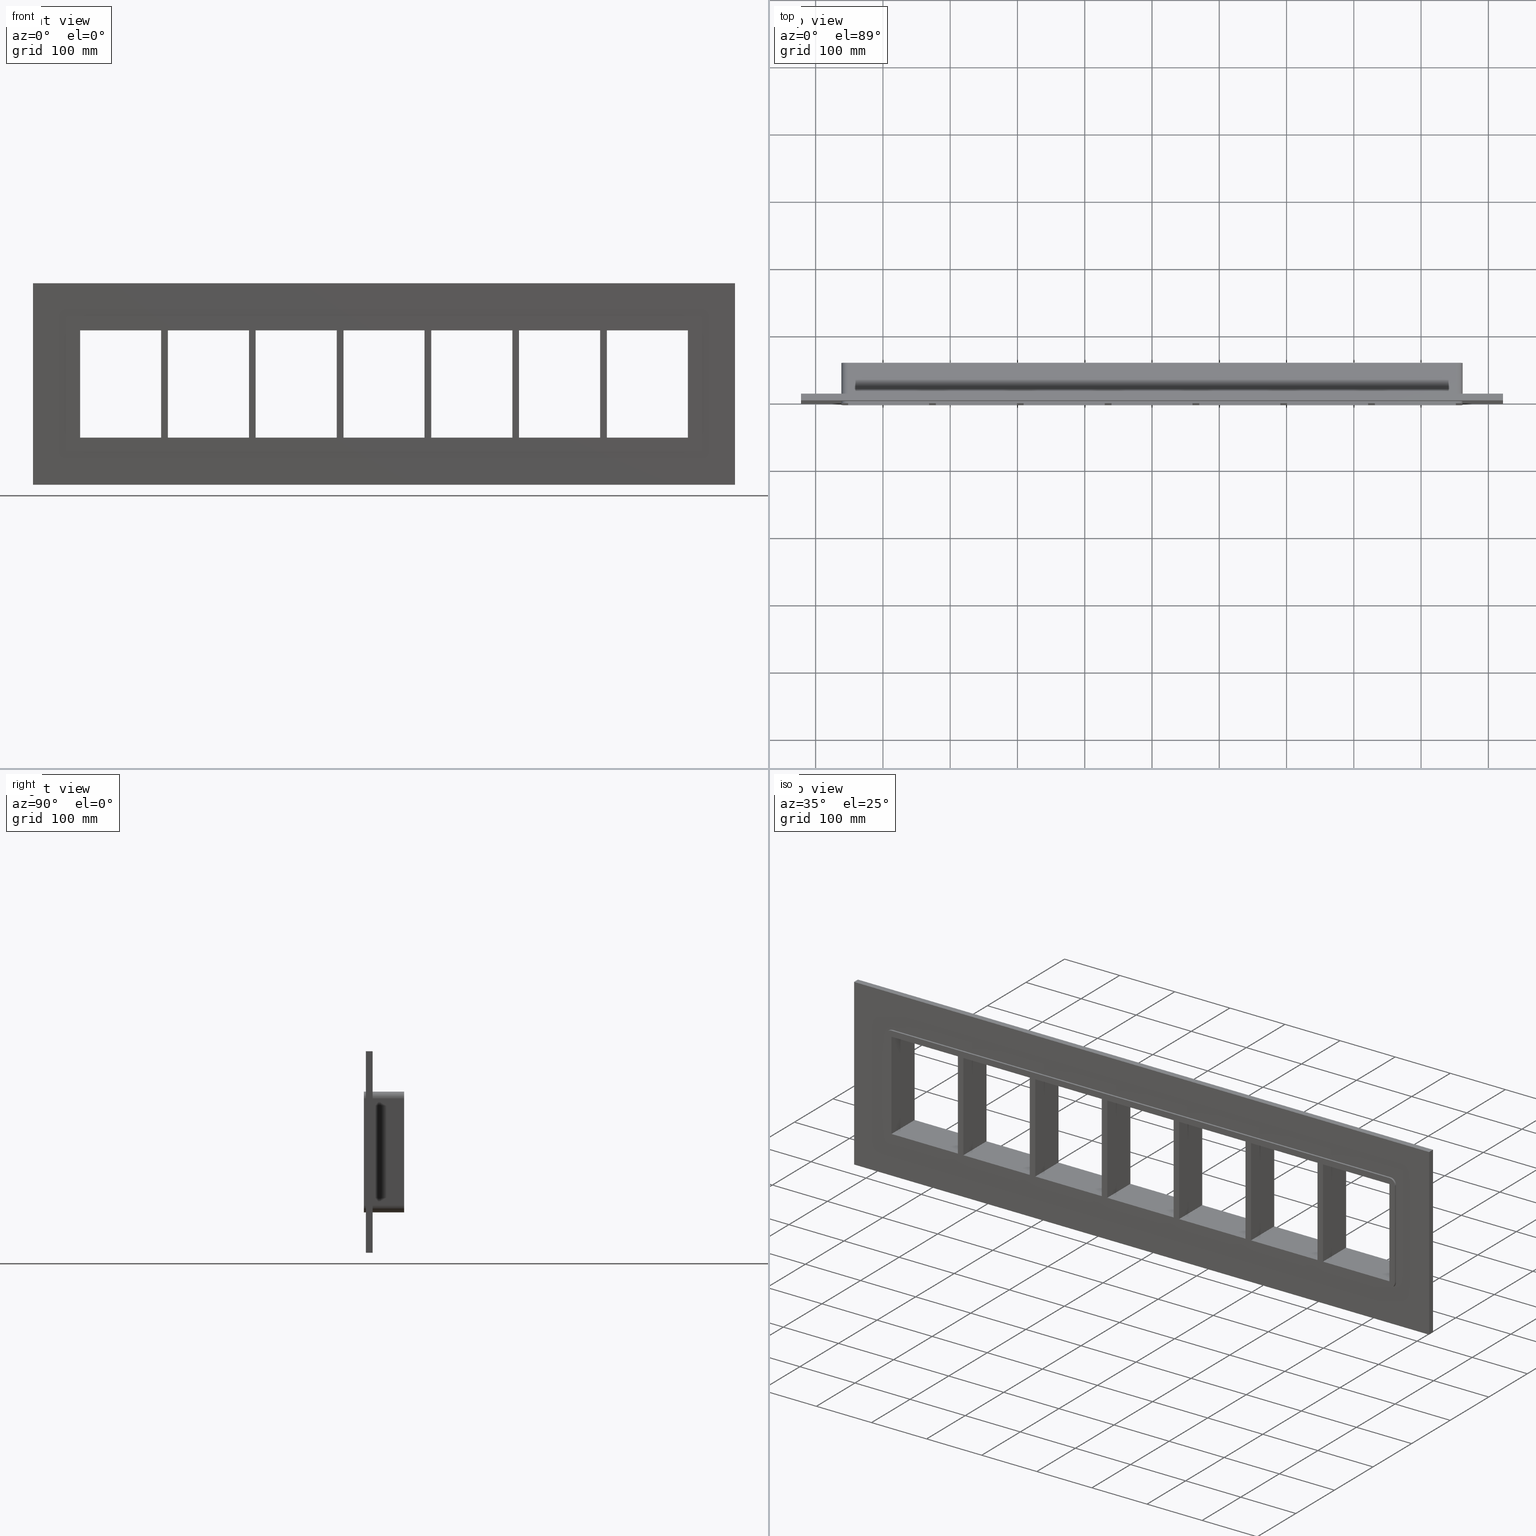
[diagram: canonical four-view strip — front | top / right | iso, engineering-drawing reading convention]
A machine part, canonical four-view strip (front | top / right | iso — engineering-drawing reading convention). The complete STEP part file that produces these views, byte-faithful:
ISO-10303-21;
HEADER;
/****************************************************************
 * Generated by software with PDElib inside                    *
 * PDElib Version v51a, created Wed 11/30/2011                  *
 * ITI Transcendata (http://www.transcendata.com/)              *
 ****************************************************************/
FILE_DESCRIPTION((''),'2;1');
FILE_NAME('C:\\RoxtecConfigurator\\CreatedFiles\\STEP\\SF4X7.stp','2013-06-28T14:25:57',(''),(''),'Autodesk Inventor 2013','Autodesk Inventor 2013','');
FILE_SCHEMA(('AUTOMOTIVE_DESIGN { 1 0 10303 214 1 1 1 1 }'));
ENDSEC;
DATA;
#5=APPLICATION_CONTEXT('automotive design');
#6=APPLICATION_PROTOCOL_DEFINITION('International Standard','automotive_design',2001,#5);
#7=PRODUCT_CONTEXT('',#5,'mechanical');
#8=PRODUCT('roxtec S_SF_G','roxtec S_SF_G',$,(#7));
#9=PRODUCT_RELATED_PRODUCT_CATEGORY('part',$,(#8));
#10=PRODUCT_DEFINITION_FORMATION('',$,#8);
#11=PRODUCT_DEFINITION_CONTEXT('part definition',#5,'design');
#12=PRODUCT_DEFINITION('',$,#10,#11);
#18=(NAMED_UNIT(*)PLANE_ANGLE_UNIT()SI_UNIT($,.RADIAN.));
#19=DIMENSIONAL_EXPONENTS(0.0,0.0,0.0,0.0,0.0,0.0,0.0);
#20=PLANE_ANGLE_MEASURE_WITH_UNIT(PLANE_ANGLE_MEASURE(0.0174532925),#18);
#24=(CONVERSION_BASED_UNIT('DEGREE',#20)NAMED_UNIT(#19)PLANE_ANGLE_UNIT());
#28=(NAMED_UNIT(*)SI_UNIT($,.STERADIAN.)SOLID_ANGLE_UNIT());
#32=(LENGTH_UNIT()NAMED_UNIT(*)SI_UNIT(.MILLI.,.METRE.));
#34=UNCERTAINTY_MEASURE_WITH_UNIT(LENGTH_MEASURE(0.01),#32,'DISTANCE_ACCURACY_VALUE','');
#36=(GEOMETRIC_REPRESENTATION_CONTEXT(3)GLOBAL_UNCERTAINTY_ASSIGNED_CONTEXT((#34))GLOBAL_UNIT_ASSIGNED_CONTEXT((#24,#28,#32))REPRESENTATION_CONTEXT('None','None'));
#37=AXIS2_PLACEMENT_3D('',#38,#39,#40);
#38=CARTESIAN_POINT('',(0.0,0.0,0.0));
#39=DIRECTION('',(0.0,0.0,1.0));
#40=DIRECTION('',(1.0,0.0,0.0));
#41=SHAPE_REPRESENTATION('',(#37),#36);
#42=PRODUCT_DEFINITION_SHAPE('','',#12);
#43=SHAPE_DEFINITION_REPRESENTATION(#42,#41);
#49=(NAMED_UNIT(*)PLANE_ANGLE_UNIT()SI_UNIT($,.RADIAN.));
#50=DIMENSIONAL_EXPONENTS(0.0,0.0,0.0,0.0,0.0,0.0,0.0);
#51=PLANE_ANGLE_MEASURE_WITH_UNIT(PLANE_ANGLE_MEASURE(0.0174532925),#49);
#55=(CONVERSION_BASED_UNIT('DEGREE',#51)NAMED_UNIT(#50)PLANE_ANGLE_UNIT());
#59=(NAMED_UNIT(*)SI_UNIT($,.STERADIAN.)SOLID_ANGLE_UNIT());
#63=(LENGTH_UNIT()NAMED_UNIT(*)SI_UNIT(.MILLI.,.METRE.));
#65=UNCERTAINTY_MEASURE_WITH_UNIT(LENGTH_MEASURE(0.000001),#63,'DISTANCE_ACCURACY_VALUE','');
#67=(GEOMETRIC_REPRESENTATION_CONTEXT(3)GLOBAL_UNCERTAINTY_ASSIGNED_CONTEXT((#65))GLOBAL_UNIT_ASSIGNED_CONTEXT((#55,#59,#63))REPRESENTATION_CONTEXT('','3D'));
#68=CARTESIAN_POINT('',(321.24999999999858,-3.0,-79.75));
#69=DIRECTION('',(-1.0,0.0,0.0));
#70=DIRECTION('',(0.0,0.0,1.0));
#71=AXIS2_PLACEMENT_3D('',#68,#69,#70);
#72=PLANE('',#71);
#73=CARTESIAN_POINT('',(321.24999999999858,-3.0,-79.75));
#74=VERTEX_POINT('',#73);
#75=CARTESIAN_POINT('',(321.24999999999858,-3.0,79.750000000000014));
#76=VERTEX_POINT('',#75);
#77=CARTESIAN_POINT('',(321.24999999999858,-3.0,-79.75));
#78=DIRECTION('',(0.0,0.0,1.0));
#79=VECTOR('',#78,159.5);
#80=LINE('',#77,#79);
#81=EDGE_CURVE('',#74,#76,#80,.T.);
#82=ORIENTED_EDGE('',*,*,#81,.T.);
#83=CARTESIAN_POINT('',(321.24999999999858,57.0,79.750000000000014));
#84=VERTEX_POINT('',#83);
#85=CARTESIAN_POINT('',(321.24999999999858,57.000000000000007,79.750000000000014));
#86=DIRECTION('',(0.0,-1.0,0.0));
#87=VECTOR('',#86,60.000000000000007);
#88=LINE('',#85,#87);
#89=EDGE_CURVE('',#84,#76,#88,.T.);
#90=ORIENTED_EDGE('',*,*,#89,.F.);
#91=CARTESIAN_POINT('',(321.24999999999858,57.0,-79.75));
#92=VERTEX_POINT('',#91);
#93=CARTESIAN_POINT('',(321.24999999999858,57.0,-79.75));
#94=DIRECTION('',(0.0,0.0,1.0));
#95=VECTOR('',#94,159.5);
#96=LINE('',#93,#95);
#97=EDGE_CURVE('',#92,#84,#96,.T.);
#98=ORIENTED_EDGE('',*,*,#97,.F.);
#99=CARTESIAN_POINT('',(321.24999999999858,-3.0,-79.75));
#100=DIRECTION('',(0.0,1.0,0.0));
#101=VECTOR('',#100,60.000000000000007);
#102=LINE('',#99,#101);
#103=EDGE_CURVE('',#74,#92,#102,.T.);
#104=ORIENTED_EDGE('',*,*,#103,.F.);
#105=EDGE_LOOP('',(#82,#90,#98,#104));
#106=FACE_OUTER_BOUND('',#105,.T.);
#107=ADVANCED_FACE('',(#106),#72,.T.);
#108=CARTESIAN_POINT('',(331.25,-3.0,79.750000000000014));
#109=DIRECTION('',(1.0,0.0,0.0));
#110=DIRECTION('',(0.0,0.0,-1.0));
#111=AXIS2_PLACEMENT_3D('',#108,#109,#110);
#112=PLANE('',#111);
#113=CARTESIAN_POINT('',(331.25,-3.0,79.750000000000014));
#114=VERTEX_POINT('',#113);
#115=CARTESIAN_POINT('',(331.25,-3.0,-79.74999999998407));
#116=VERTEX_POINT('',#115);
#117=CARTESIAN_POINT('',(331.25,-3.0,79.750000000000014));
#118=DIRECTION('',(0.0,0.0,-1.0));
#119=VECTOR('',#118,159.49999999998408);
#120=LINE('',#117,#119);
#121=EDGE_CURVE('',#114,#116,#120,.T.);
#122=ORIENTED_EDGE('',*,*,#121,.T.);
#123=CARTESIAN_POINT('',(331.25,57.0,-79.749999999984055));
#124=VERTEX_POINT('',#123);
#125=CARTESIAN_POINT('',(331.25,57.000000000000007,-79.75));
#126=DIRECTION('',(0.0,-1.0,0.0));
#127=VECTOR('',#126,60.000000000000007);
#128=LINE('',#125,#127);
#129=EDGE_CURVE('',#124,#116,#128,.T.);
#130=ORIENTED_EDGE('',*,*,#129,.F.);
#131=CARTESIAN_POINT('',(331.25,57.0,79.750000000000014));
#132=VERTEX_POINT('',#131);
#133=CARTESIAN_POINT('',(331.25,57.0,79.750000000000014));
#134=DIRECTION('',(0.0,0.0,-1.0));
#135=VECTOR('',#134,159.49999999998408);
#136=LINE('',#133,#135);
#137=EDGE_CURVE('',#132,#124,#136,.T.);
#138=ORIENTED_EDGE('',*,*,#137,.F.);
#139=CARTESIAN_POINT('',(331.25,-3.0,79.750000000000014));
#140=DIRECTION('',(0.0,1.0,0.0));
#141=VECTOR('',#140,60.000000000000007);
#142=LINE('',#139,#141);
#143=EDGE_CURVE('',#114,#132,#142,.T.);
#144=ORIENTED_EDGE('',*,*,#143,.F.);
#145=EDGE_LOOP('',(#122,#130,#138,#144));
#146=FACE_OUTER_BOUND('',#145,.T.);
#147=ADVANCED_FACE('',(#146),#112,.T.);
#148=CARTESIAN_POINT('',(190.74999999999864,-3.0,-79.75));
#149=DIRECTION('',(-1.0,0.0,0.0));
#150=DIRECTION('',(0.0,0.0,1.0));
#151=AXIS2_PLACEMENT_3D('',#148,#149,#150);
#152=PLANE('',#151);
#153=CARTESIAN_POINT('',(190.74999999999864,-3.0,-79.75));
#154=VERTEX_POINT('',#153);
#155=CARTESIAN_POINT('',(190.74999999999858,-3.0,79.750000000000014));
#156=VERTEX_POINT('',#155);
#157=CARTESIAN_POINT('',(190.74999999999864,-3.0,-79.75));
#158=DIRECTION('',(0.0,0.0,1.0));
#159=VECTOR('',#158,159.5);
#160=LINE('',#157,#159);
#161=EDGE_CURVE('',#154,#156,#160,.T.);
#162=ORIENTED_EDGE('',*,*,#161,.T.);
#163=CARTESIAN_POINT('',(190.74999999999858,57.0,79.750000000000014));
#164=VERTEX_POINT('',#163);
#165=CARTESIAN_POINT('',(190.74999999999858,57.000000000000007,79.750000000000014));
#166=DIRECTION('',(0.0,-1.0,0.0));
#167=VECTOR('',#166,60.000000000000007);
#168=LINE('',#165,#167);
#169=EDGE_CURVE('',#164,#156,#168,.T.);
#170=ORIENTED_EDGE('',*,*,#169,.F.);
#171=CARTESIAN_POINT('',(190.74999999999864,57.0,-79.75));
#172=VERTEX_POINT('',#171);
#173=CARTESIAN_POINT('',(190.74999999999864,57.0,-79.75));
#174=DIRECTION('',(0.0,0.0,1.0));
#175=VECTOR('',#174,159.5);
#176=LINE('',#173,#175);
#177=EDGE_CURVE('',#172,#164,#176,.T.);
#178=ORIENTED_EDGE('',*,*,#177,.F.);
#179=CARTESIAN_POINT('',(190.74999999999861,-3.0,-79.75));
#180=DIRECTION('',(0.0,1.0,0.0));
#181=VECTOR('',#180,60.000000000000007);
#182=LINE('',#179,#181);
#183=EDGE_CURVE('',#154,#172,#182,.T.);
#184=ORIENTED_EDGE('',*,*,#183,.F.);
#185=EDGE_LOOP('',(#162,#170,#178,#184));
#186=FACE_OUTER_BOUND('',#185,.T.);
#187=ADVANCED_FACE('',(#186),#152,.T.);
#188=CARTESIAN_POINT('',(200.75000000000006,-3.0,79.750000000000014));
#189=DIRECTION('',(1.0,0.0,0.0));
#190=DIRECTION('',(0.0,0.0,-1.0));
#191=AXIS2_PLACEMENT_3D('',#188,#189,#190);
#192=PLANE('',#191);
#193=CARTESIAN_POINT('',(200.75000000000006,-3.0,79.750000000000014));
#194=VERTEX_POINT('',#193);
#195=CARTESIAN_POINT('',(200.75000000000006,-3.0,-79.74999999998407));
#196=VERTEX_POINT('',#195);
#197=CARTESIAN_POINT('',(200.75000000000006,-3.0,79.750000000000014));
#198=DIRECTION('',(0.0,0.0,-1.0));
#199=VECTOR('',#198,159.49999999998408);
#200=LINE('',#197,#199);
#201=EDGE_CURVE('',#194,#196,#200,.T.);
#202=ORIENTED_EDGE('',*,*,#201,.T.);
#203=CARTESIAN_POINT('',(200.75000000000006,57.0,-79.749999999984055));
#204=VERTEX_POINT('',#203);
#205=CARTESIAN_POINT('',(200.75000000000003,57.000000000000007,-79.75));
#206=DIRECTION('',(0.0,-1.0,0.0));
#207=VECTOR('',#206,60.000000000000007);
#208=LINE('',#205,#207);
#209=EDGE_CURVE('',#204,#196,#208,.T.);
#210=ORIENTED_EDGE('',*,*,#209,.F.);
#211=CARTESIAN_POINT('',(200.75000000000006,57.0,79.750000000000014));
#212=VERTEX_POINT('',#211);
#213=CARTESIAN_POINT('',(200.75000000000006,57.0,79.750000000000014));
#214=DIRECTION('',(0.0,0.0,-1.0));
#215=VECTOR('',#214,159.49999999998408);
#216=LINE('',#213,#215);
#217=EDGE_CURVE('',#212,#204,#216,.T.);
#218=ORIENTED_EDGE('',*,*,#217,.F.);
#219=CARTESIAN_POINT('',(200.75000000000011,-3.0,79.750000000000014));
#220=DIRECTION('',(0.0,1.0,0.0));
#221=VECTOR('',#220,60.000000000000007);
#222=LINE('',#219,#221);
#223=EDGE_CURVE('',#194,#212,#222,.T.);
#224=ORIENTED_EDGE('',*,*,#223,.F.);
#225=EDGE_LOOP('',(#202,#210,#218,#224));
#226=FACE_OUTER_BOUND('',#225,.T.);
#227=ADVANCED_FACE('',(#226),#192,.T.);
#228=CARTESIAN_POINT('',(60.249999999998636,-3.0,-79.75));
#229=DIRECTION('',(-1.0,0.0,0.0));
#230=DIRECTION('',(0.0,0.0,1.0));
#231=AXIS2_PLACEMENT_3D('',#228,#229,#230);
#232=PLANE('',#231);
#233=CARTESIAN_POINT('',(60.249999999998636,-3.0,-79.75));
#234=VERTEX_POINT('',#233);
#235=CARTESIAN_POINT('',(60.249999999998565,-3.0,79.750000000000014));
#236=VERTEX_POINT('',#235);
#237=CARTESIAN_POINT('',(60.249999999998636,-3.0,-79.75));
#238=DIRECTION('',(0.0,0.0,1.0));
#239=VECTOR('',#238,159.5);
#240=LINE('',#237,#239);
#241=EDGE_CURVE('',#234,#236,#240,.T.);
#242=ORIENTED_EDGE('',*,*,#241,.T.);
#243=CARTESIAN_POINT('',(60.249999999998565,57.0,79.750000000000014));
#244=VERTEX_POINT('',#243);
#245=CARTESIAN_POINT('',(60.249999999998565,57.000000000000007,79.750000000000014));
#246=DIRECTION('',(0.0,-1.0,0.0));
#247=VECTOR('',#246,60.000000000000007);
#248=LINE('',#245,#247);
#249=EDGE_CURVE('',#244,#236,#248,.T.);
#250=ORIENTED_EDGE('',*,*,#249,.F.);
#251=CARTESIAN_POINT('',(60.249999999998636,57.0,-79.75));
#252=VERTEX_POINT('',#251);
#253=CARTESIAN_POINT('',(60.249999999998636,57.0,-79.75));
#254=DIRECTION('',(0.0,0.0,1.0));
#255=VECTOR('',#254,159.5);
#256=LINE('',#253,#255);
#257=EDGE_CURVE('',#252,#244,#256,.T.);
#258=ORIENTED_EDGE('',*,*,#257,.F.);
#259=CARTESIAN_POINT('',(60.249999999998636,-3.0,-79.75));
#260=DIRECTION('',(0.0,1.0,0.0));
#261=VECTOR('',#260,60.000000000000007);
#262=LINE('',#259,#261);
#263=EDGE_CURVE('',#234,#252,#262,.T.);
#264=ORIENTED_EDGE('',*,*,#263,.F.);
#265=EDGE_LOOP('',(#242,#250,#258,#264));
#266=FACE_OUTER_BOUND('',#265,.T.);
#267=ADVANCED_FACE('',(#266),#232,.T.);
#268=CARTESIAN_POINT('',(70.250000000000057,-3.0,79.750000000000014));
#269=DIRECTION('',(1.0,0.0,0.0));
#270=DIRECTION('',(0.0,0.0,-1.0));
#271=AXIS2_PLACEMENT_3D('',#268,#269,#270);
#272=PLANE('',#271);
#273=CARTESIAN_POINT('',(70.250000000000057,-3.0,79.750000000000014));
#274=VERTEX_POINT('',#273);
#275=CARTESIAN_POINT('',(70.250000000000057,-3.0,-79.74999999998407));
#276=VERTEX_POINT('',#275);
#277=CARTESIAN_POINT('',(70.250000000000057,-3.0,79.750000000000014));
#278=DIRECTION('',(0.0,0.0,-1.0));
#279=VECTOR('',#278,159.49999999998408);
#280=LINE('',#277,#279);
#281=EDGE_CURVE('',#274,#276,#280,.T.);
#282=ORIENTED_EDGE('',*,*,#281,.T.);
#283=CARTESIAN_POINT('',(70.250000000000057,57.0,-79.749999999984055));
#284=VERTEX_POINT('',#283);
#285=CARTESIAN_POINT('',(70.250000000000057,57.000000000000007,-79.75));
#286=DIRECTION('',(0.0,-1.0,0.0));
#287=VECTOR('',#286,60.000000000000007);
#288=LINE('',#285,#287);
#289=EDGE_CURVE('',#284,#276,#288,.T.);
#290=ORIENTED_EDGE('',*,*,#289,.F.);
#291=CARTESIAN_POINT('',(70.250000000000057,57.0,79.750000000000014));
#292=VERTEX_POINT('',#291);
#293=CARTESIAN_POINT('',(70.250000000000057,57.0,79.750000000000014));
#294=DIRECTION('',(0.0,0.0,-1.0));
#295=VECTOR('',#294,159.49999999998408);
#296=LINE('',#293,#295);
#297=EDGE_CURVE('',#292,#284,#296,.T.);
#298=ORIENTED_EDGE('',*,*,#297,.F.);
#299=CARTESIAN_POINT('',(70.250000000000057,-3.0,79.750000000000014));
#300=DIRECTION('',(0.0,1.0,0.0));
#301=VECTOR('',#300,60.000000000000007);
#302=LINE('',#299,#301);
#303=EDGE_CURVE('',#274,#292,#302,.T.);
#304=ORIENTED_EDGE('',*,*,#303,.F.);
#305=EDGE_LOOP('',(#282,#290,#298,#304));
#306=FACE_OUTER_BOUND('',#305,.T.);
#307=ADVANCED_FACE('',(#306),#272,.T.);
#308=CARTESIAN_POINT('',(-70.250000000001407,-3.0,-79.75));
#309=DIRECTION('',(-1.0,0.0,0.0));
#310=DIRECTION('',(0.0,0.0,1.0));
#311=AXIS2_PLACEMENT_3D('',#308,#309,#310);
#312=PLANE('',#311);
#313=CARTESIAN_POINT('',(-70.250000000001407,-3.0,-79.75));
#314=VERTEX_POINT('',#313);
#315=CARTESIAN_POINT('',(-70.250000000001478,-3.0,79.750000000000014));
#316=VERTEX_POINT('',#315);
#317=CARTESIAN_POINT('',(-70.250000000001407,-3.0,-79.75));
#318=DIRECTION('',(0.0,0.0,1.0));
#319=VECTOR('',#318,159.5);
#320=LINE('',#317,#319);
#321=EDGE_CURVE('',#314,#316,#320,.T.);
#322=ORIENTED_EDGE('',*,*,#321,.T.);
#323=CARTESIAN_POINT('',(-70.250000000001478,57.0,79.750000000000014));
#324=VERTEX_POINT('',#323);
#325=CARTESIAN_POINT('',(-70.250000000001478,57.000000000000007,79.750000000000014));
#326=DIRECTION('',(0.0,-1.0,0.0));
#327=VECTOR('',#326,60.000000000000007);
#328=LINE('',#325,#327);
#329=EDGE_CURVE('',#324,#316,#328,.T.);
#330=ORIENTED_EDGE('',*,*,#329,.F.);
#331=CARTESIAN_POINT('',(-70.250000000001407,57.0,-79.75));
#332=VERTEX_POINT('',#331);
#333=CARTESIAN_POINT('',(-70.250000000001407,57.0,-79.75));
#334=DIRECTION('',(0.0,0.0,1.0));
#335=VECTOR('',#334,159.5);
#336=LINE('',#333,#335);
#337=EDGE_CURVE('',#332,#324,#336,.T.);
#338=ORIENTED_EDGE('',*,*,#337,.F.);
#339=CARTESIAN_POINT('',(-70.250000000001407,-3.0,-79.75));
#340=DIRECTION('',(0.0,1.0,0.0));
#341=VECTOR('',#340,60.000000000000007);
#342=LINE('',#339,#341);
#343=EDGE_CURVE('',#314,#332,#342,.T.);
#344=ORIENTED_EDGE('',*,*,#343,.F.);
#345=EDGE_LOOP('',(#322,#330,#338,#344));
#346=FACE_OUTER_BOUND('',#345,.T.);
#347=ADVANCED_FACE('',(#346),#312,.T.);
#348=CARTESIAN_POINT('',(-60.249999999999986,-3.0,79.750000000000014));
#349=DIRECTION('',(1.0,0.0,0.0));
#350=DIRECTION('',(0.0,0.0,-1.0));
#351=AXIS2_PLACEMENT_3D('',#348,#349,#350);
#352=PLANE('',#351);
#353=CARTESIAN_POINT('',(-60.249999999999986,-3.0,79.750000000000014));
#354=VERTEX_POINT('',#353);
#355=CARTESIAN_POINT('',(-60.249999999999986,-3.0,-79.74999999998407));
#356=VERTEX_POINT('',#355);
#357=CARTESIAN_POINT('',(-60.249999999999986,-3.0,79.750000000000014));
#358=DIRECTION('',(0.0,0.0,-1.0));
#359=VECTOR('',#358,159.49999999998408);
#360=LINE('',#357,#359);
#361=EDGE_CURVE('',#354,#356,#360,.T.);
#362=ORIENTED_EDGE('',*,*,#361,.T.);
#363=CARTESIAN_POINT('',(-60.249999999999986,57.0,-79.749999999984055));
#364=VERTEX_POINT('',#363);
#365=CARTESIAN_POINT('',(-60.249999999999986,57.000000000000007,-79.75));
#366=DIRECTION('',(0.0,-1.0,0.0));
#367=VECTOR('',#366,60.000000000000007);
#368=LINE('',#365,#367);
#369=EDGE_CURVE('',#364,#356,#368,.T.);
#370=ORIENTED_EDGE('',*,*,#369,.F.);
#371=CARTESIAN_POINT('',(-60.249999999999986,57.0,79.750000000000014));
#372=VERTEX_POINT('',#371);
#373=CARTESIAN_POINT('',(-60.249999999999986,57.0,79.750000000000014));
#374=DIRECTION('',(0.0,0.0,-1.0));
#375=VECTOR('',#374,159.49999999998408);
#376=LINE('',#373,#375);
#377=EDGE_CURVE('',#372,#364,#376,.T.);
#378=ORIENTED_EDGE('',*,*,#377,.F.);
#379=CARTESIAN_POINT('',(-60.249999999999986,-3.0,79.750000000000014));
#380=DIRECTION('',(0.0,1.0,0.0));
#381=VECTOR('',#380,60.000000000000007);
#382=LINE('',#379,#381);
#383=EDGE_CURVE('',#354,#372,#382,.T.);
#384=ORIENTED_EDGE('',*,*,#383,.F.);
#385=EDGE_LOOP('',(#362,#370,#378,#384));
#386=FACE_OUTER_BOUND('',#385,.T.);
#387=ADVANCED_FACE('',(#386),#352,.T.);
#388=CARTESIAN_POINT('',(-200.75000000000142,-3.0,-79.75));
#389=DIRECTION('',(-1.0,0.0,0.0));
#390=DIRECTION('',(0.0,0.0,1.0));
#391=AXIS2_PLACEMENT_3D('',#388,#389,#390);
#392=PLANE('',#391);
#393=CARTESIAN_POINT('',(-200.75000000000142,-3.0,-79.75));
#394=VERTEX_POINT('',#393);
#395=CARTESIAN_POINT('',(-200.75000000000148,-3.0,79.750000000000014));
#396=VERTEX_POINT('',#395);
#397=CARTESIAN_POINT('',(-200.75000000000142,-3.0,-79.75));
#398=DIRECTION('',(0.0,0.0,1.0));
#399=VECTOR('',#398,159.5);
#400=LINE('',#397,#399);
#401=EDGE_CURVE('',#394,#396,#400,.T.);
#402=ORIENTED_EDGE('',*,*,#401,.T.);
#403=CARTESIAN_POINT('',(-200.75000000000148,57.0,79.750000000000014));
#404=VERTEX_POINT('',#403);
#405=CARTESIAN_POINT('',(-200.75000000000148,57.000000000000007,79.750000000000014));
#406=DIRECTION('',(0.0,-1.0,0.0));
#407=VECTOR('',#406,60.000000000000007);
#408=LINE('',#405,#407);
#409=EDGE_CURVE('',#404,#396,#408,.T.);
#410=ORIENTED_EDGE('',*,*,#409,.F.);
#411=CARTESIAN_POINT('',(-200.75000000000142,57.0,-79.75));
#412=VERTEX_POINT('',#411);
#413=CARTESIAN_POINT('',(-200.75000000000142,57.0,-79.75));
#414=DIRECTION('',(0.0,0.0,1.0));
#415=VECTOR('',#414,159.5);
#416=LINE('',#413,#415);
#417=EDGE_CURVE('',#412,#404,#416,.T.);
#418=ORIENTED_EDGE('',*,*,#417,.F.);
#419=CARTESIAN_POINT('',(-200.75000000000145,-3.0,-79.75));
#420=DIRECTION('',(0.0,1.0,0.0));
#421=VECTOR('',#420,60.000000000000007);
#422=LINE('',#419,#421);
#423=EDGE_CURVE('',#394,#412,#422,.T.);
#424=ORIENTED_EDGE('',*,*,#423,.F.);
#425=EDGE_LOOP('',(#402,#410,#418,#424));
#426=FACE_OUTER_BOUND('',#425,.T.);
#427=ADVANCED_FACE('',(#426),#392,.T.);
#428=CARTESIAN_POINT('',(-190.75,-3.0,79.750000000000014));
#429=DIRECTION('',(1.0,0.0,0.0));
#430=DIRECTION('',(0.0,0.0,-1.0));
#431=AXIS2_PLACEMENT_3D('',#428,#429,#430);
#432=PLANE('',#431);
#433=CARTESIAN_POINT('',(-190.75,-3.0,79.750000000000014));
#434=VERTEX_POINT('',#433);
#435=CARTESIAN_POINT('',(-190.75,-3.0,-79.74999999998407));
#436=VERTEX_POINT('',#435);
#437=CARTESIAN_POINT('',(-190.75,-3.0,79.750000000000014));
#438=DIRECTION('',(0.0,0.0,-1.0));
#439=VECTOR('',#438,159.49999999998408);
#440=LINE('',#437,#439);
#441=EDGE_CURVE('',#434,#436,#440,.T.);
#442=ORIENTED_EDGE('',*,*,#441,.T.);
#443=CARTESIAN_POINT('',(-190.75,57.0,-79.749999999984055));
#444=VERTEX_POINT('',#443);
#445=CARTESIAN_POINT('',(-190.75000000000003,57.000000000000007,-79.75));
#446=DIRECTION('',(0.0,-1.0,0.0));
#447=VECTOR('',#446,60.000000000000007);
#448=LINE('',#445,#447);
#449=EDGE_CURVE('',#444,#436,#448,.T.);
#450=ORIENTED_EDGE('',*,*,#449,.F.);
#451=CARTESIAN_POINT('',(-190.75,57.0,79.750000000000014));
#452=VERTEX_POINT('',#451);
#453=CARTESIAN_POINT('',(-190.75,57.0,79.750000000000014));
#454=DIRECTION('',(0.0,0.0,-1.0));
#455=VECTOR('',#454,159.49999999998408);
#456=LINE('',#453,#455);
#457=EDGE_CURVE('',#452,#444,#456,.T.);
#458=ORIENTED_EDGE('',*,*,#457,.F.);
#459=CARTESIAN_POINT('',(-190.74999999999994,-3.0,79.750000000000014));
#460=DIRECTION('',(0.0,1.0,0.0));
#461=VECTOR('',#460,60.000000000000007);
#462=LINE('',#459,#461);
#463=EDGE_CURVE('',#434,#452,#462,.T.);
#464=ORIENTED_EDGE('',*,*,#463,.F.);
#465=EDGE_LOOP('',(#442,#450,#458,#464));
#466=FACE_OUTER_BOUND('',#465,.T.);
#467=ADVANCED_FACE('',(#466),#432,.T.);
#468=CARTESIAN_POINT('',(451.75000000000011,0.0,-79.75));
#469=DIRECTION('',(0.0,0.0,-1.0));
#470=DIRECTION('',(-1.0,0.0,0.0));
#471=AXIS2_PLACEMENT_3D('',#468,#469,#470);
#472=PLANE('',#471);
#473=ORIENTED_EDGE('',*,*,#423,.T.);
#474=CARTESIAN_POINT('',(-321.25,57.0,-79.749999999984055));
#475=VERTEX_POINT('',#474);
#476=CARTESIAN_POINT('',(-321.24999999999994,57.0,-79.75));
#477=DIRECTION('',(1.0,0.0,0.0));
#478=VECTOR('',#477,120.49999999999852);
#479=LINE('',#476,#478);
#480=EDGE_CURVE('',#475,#412,#479,.T.);
#481=ORIENTED_EDGE('',*,*,#480,.F.);
#482=CARTESIAN_POINT('',(-321.25,-3.0,-79.74999999998407));
#483=VERTEX_POINT('',#482);
#484=CARTESIAN_POINT('',(-321.25,57.000000000000007,-79.75));
#485=DIRECTION('',(0.0,-1.0,0.0));
#486=VECTOR('',#485,60.000000000000007);
#487=LINE('',#484,#486);
#488=EDGE_CURVE('',#475,#483,#487,.T.);
#489=ORIENTED_EDGE('',*,*,#488,.T.);
#490=CARTESIAN_POINT('',(-200.75000000000142,-3.0,-79.75));
#491=DIRECTION('',(-1.0,0.0,0.0));
#492=VECTOR('',#491,120.49999999999852);
#493=LINE('',#490,#492);
#494=EDGE_CURVE('',#394,#483,#493,.T.);
#495=ORIENTED_EDGE('',*,*,#494,.F.);
#496=EDGE_LOOP('',(#473,#481,#489,#495));
#497=FACE_OUTER_BOUND('',#496,.T.);
#498=ADVANCED_FACE('',(#497),#472,.F.);
#499=CARTESIAN_POINT('',(451.75000000000011,0.0,-79.75));
#500=DIRECTION('',(0.0,0.0,-1.0));
#501=DIRECTION('',(-1.0,0.0,0.0));
#502=AXIS2_PLACEMENT_3D('',#499,#500,#501);
#503=PLANE('',#502);
#504=ORIENTED_EDGE('',*,*,#343,.T.);
#505=CARTESIAN_POINT('',(-190.75000000000006,57.0,-79.75));
#506=DIRECTION('',(1.0,0.0,0.0));
#507=VECTOR('',#506,120.49999999999864);
#508=LINE('',#505,#507);
#509=EDGE_CURVE('',#444,#332,#508,.T.);
#510=ORIENTED_EDGE('',*,*,#509,.F.);
#511=ORIENTED_EDGE('',*,*,#449,.T.);
#512=CARTESIAN_POINT('',(-70.250000000001421,-3.0,-79.75));
#513=DIRECTION('',(-1.0,0.0,0.0));
#514=VECTOR('',#513,120.49999999999864);
#515=LINE('',#512,#514);
#516=EDGE_CURVE('',#314,#436,#515,.T.);
#517=ORIENTED_EDGE('',*,*,#516,.F.);
#518=EDGE_LOOP('',(#504,#510,#511,#517));
#519=FACE_OUTER_BOUND('',#518,.T.);
#520=ADVANCED_FACE('',(#519),#503,.F.);
#521=CARTESIAN_POINT('',(451.75000000000011,0.0,-79.75));
#522=DIRECTION('',(0.0,0.0,-1.0));
#523=DIRECTION('',(-1.0,0.0,0.0));
#524=AXIS2_PLACEMENT_3D('',#521,#522,#523);
#525=PLANE('',#524);
#526=ORIENTED_EDGE('',*,*,#263,.T.);
#527=CARTESIAN_POINT('',(-60.25,57.0,-79.75));
#528=DIRECTION('',(1.0,0.0,0.0));
#529=VECTOR('',#528,120.49999999999864);
#530=LINE('',#527,#529);
#531=EDGE_CURVE('',#364,#252,#530,.T.);
#532=ORIENTED_EDGE('',*,*,#531,.F.);
#533=ORIENTED_EDGE('',*,*,#369,.T.);
#534=CARTESIAN_POINT('',(60.249999999998636,-3.0,-79.75));
#535=DIRECTION('',(-1.0,0.0,0.0));
#536=VECTOR('',#535,120.49999999999864);
#537=LINE('',#534,#536);
#538=EDGE_CURVE('',#234,#356,#537,.T.);
#539=ORIENTED_EDGE('',*,*,#538,.F.);
#540=EDGE_LOOP('',(#526,#532,#533,#539));
#541=FACE_OUTER_BOUND('',#540,.T.);
#542=ADVANCED_FACE('',(#541),#525,.F.);
#543=CARTESIAN_POINT('',(451.75000000000011,0.0,-79.75));
#544=DIRECTION('',(0.0,0.0,-1.0));
#545=DIRECTION('',(-1.0,0.0,0.0));
#546=AXIS2_PLACEMENT_3D('',#543,#544,#545);
#547=PLANE('',#546);
#548=ORIENTED_EDGE('',*,*,#183,.T.);
#549=CARTESIAN_POINT('',(70.250000000000057,57.0,-79.75));
#550=DIRECTION('',(1.0,0.0,0.0));
#551=VECTOR('',#550,120.49999999999858);
#552=LINE('',#549,#551);
#553=EDGE_CURVE('',#284,#172,#552,.T.);
#554=ORIENTED_EDGE('',*,*,#553,.F.);
#555=ORIENTED_EDGE('',*,*,#289,.T.);
#556=CARTESIAN_POINT('',(190.74999999999864,-3.0,-79.75));
#557=DIRECTION('',(-1.0,0.0,0.0));
#558=VECTOR('',#557,120.49999999999858);
#559=LINE('',#556,#558);
#560=EDGE_CURVE('',#154,#276,#559,.T.);
#561=ORIENTED_EDGE('',*,*,#560,.F.);
#562=EDGE_LOOP('',(#548,#554,#555,#561));
#563=FACE_OUTER_BOUND('',#562,.T.);
#564=ADVANCED_FACE('',(#563),#547,.F.);
#565=CARTESIAN_POINT('',(451.75000000000011,0.0,-79.75));
#566=DIRECTION('',(0.0,0.0,-1.0));
#567=DIRECTION('',(-1.0,0.0,0.0));
#568=AXIS2_PLACEMENT_3D('',#565,#566,#567);
#569=PLANE('',#568);
#570=ORIENTED_EDGE('',*,*,#103,.T.);
#571=CARTESIAN_POINT('',(200.75000000000006,57.0,-79.75));
#572=DIRECTION('',(1.0,0.0,0.0));
#573=VECTOR('',#572,120.49999999999852);
#574=LINE('',#571,#573);
#575=EDGE_CURVE('',#204,#92,#574,.T.);
#576=ORIENTED_EDGE('',*,*,#575,.F.);
#577=ORIENTED_EDGE('',*,*,#209,.T.);
#578=CARTESIAN_POINT('',(321.24999999999858,-3.0,-79.75));
#579=DIRECTION('',(-1.0,0.0,0.0));
#580=VECTOR('',#579,120.49999999999852);
#581=LINE('',#578,#580);
#582=EDGE_CURVE('',#74,#196,#581,.T.);
#583=ORIENTED_EDGE('',*,*,#582,.F.);
#584=EDGE_LOOP('',(#570,#576,#577,#583));
#585=FACE_OUTER_BOUND('',#584,.T.);
#586=ADVANCED_FACE('',(#585),#569,.F.);
#587=CARTESIAN_POINT('',(451.75000000000011,0.0,-79.75));
#588=DIRECTION('',(0.0,0.0,-1.0));
#589=DIRECTION('',(-1.0,0.0,0.0));
#590=AXIS2_PLACEMENT_3D('',#587,#588,#589);
#591=PLANE('',#590);
#592=ORIENTED_EDGE('',*,*,#129,.T.);
#593=CARTESIAN_POINT('',(451.75000000000011,-3.0,-79.75));
#594=VERTEX_POINT('',#593);
#595=CARTESIAN_POINT('',(451.75000000000011,-3.0,-79.75));
#596=DIRECTION('',(-1.0,0.0,0.0));
#597=VECTOR('',#596,120.50000000000011);
#598=LINE('',#595,#597);
#599=EDGE_CURVE('',#594,#116,#598,.T.);
#600=ORIENTED_EDGE('',*,*,#599,.F.);
#601=CARTESIAN_POINT('',(451.75000000000011,57.0,-79.75));
#602=VERTEX_POINT('',#601);
#603=CARTESIAN_POINT('',(451.75000000000011,57.0,-79.75));
#604=DIRECTION('',(0.0,-1.0,0.0));
#605=VECTOR('',#604,60.0);
#606=LINE('',#603,#605);
#607=EDGE_CURVE('',#602,#594,#606,.T.);
#608=ORIENTED_EDGE('',*,*,#607,.F.);
#609=CARTESIAN_POINT('',(331.25,57.0,-79.75));
#610=DIRECTION('',(1.0,0.0,0.0));
#611=VECTOR('',#610,120.50000000000011);
#612=LINE('',#609,#611);
#613=EDGE_CURVE('',#124,#602,#612,.T.);
#614=ORIENTED_EDGE('',*,*,#613,.F.);
#615=EDGE_LOOP('',(#592,#600,#608,#614));
#616=FACE_OUTER_BOUND('',#615,.T.);
#617=ADVANCED_FACE('',(#616),#591,.F.);
#618=CARTESIAN_POINT('',(-451.75000000000006,0.0,79.750000000000014));
#619=DIRECTION('',(0.0,0.0,1.0));
#620=DIRECTION('',(1.0,0.0,0.0));
#621=AXIS2_PLACEMENT_3D('',#618,#619,#620);
#622=PLANE('',#621);
#623=ORIENTED_EDGE('',*,*,#409,.T.);
#624=CARTESIAN_POINT('',(-321.25,-3.0,79.750000000000014));
#625=VERTEX_POINT('',#624);
#626=CARTESIAN_POINT('',(-321.25,-3.0,79.750000000000014));
#627=DIRECTION('',(1.0,0.0,0.0));
#628=VECTOR('',#627,120.49999999999852);
#629=LINE('',#626,#628);
#630=EDGE_CURVE('',#625,#396,#629,.T.);
#631=ORIENTED_EDGE('',*,*,#630,.F.);
#632=CARTESIAN_POINT('',(-321.25,57.0,79.750000000000014));
#633=VERTEX_POINT('',#632);
#634=CARTESIAN_POINT('',(-321.25,-3.0,79.750000000000014));
#635=DIRECTION('',(0.0,1.0,0.0));
#636=VECTOR('',#635,60.000000000000007);
#637=LINE('',#634,#636);
#638=EDGE_CURVE('',#625,#633,#637,.T.);
#639=ORIENTED_EDGE('',*,*,#638,.T.);
#640=CARTESIAN_POINT('',(-200.75000000000148,57.0,79.750000000000014));
#641=DIRECTION('',(-1.0,0.0,0.0));
#642=VECTOR('',#641,120.49999999999852);
#643=LINE('',#640,#642);
#644=EDGE_CURVE('',#404,#633,#643,.T.);
#645=ORIENTED_EDGE('',*,*,#644,.F.);
#646=EDGE_LOOP('',(#623,#631,#639,#645));
#647=FACE_OUTER_BOUND('',#646,.T.);
#648=ADVANCED_FACE('',(#647),#622,.F.);
#649=CARTESIAN_POINT('',(-451.75000000000006,0.0,79.750000000000014));
#650=DIRECTION('',(0.0,0.0,1.0));
#651=DIRECTION('',(1.0,0.0,0.0));
#652=AXIS2_PLACEMENT_3D('',#649,#650,#651);
#653=PLANE('',#652);
#654=ORIENTED_EDGE('',*,*,#329,.T.);
#655=CARTESIAN_POINT('',(-190.75,-3.0,79.750000000000014));
#656=DIRECTION('',(1.0,0.0,0.0));
#657=VECTOR('',#656,120.49999999999852);
#658=LINE('',#655,#657);
#659=EDGE_CURVE('',#434,#316,#658,.T.);
#660=ORIENTED_EDGE('',*,*,#659,.F.);
#661=ORIENTED_EDGE('',*,*,#463,.T.);
#662=CARTESIAN_POINT('',(-70.250000000001478,57.0,79.750000000000014));
#663=DIRECTION('',(-1.0,0.0,0.0));
#664=VECTOR('',#663,120.49999999999852);
#665=LINE('',#662,#664);
#666=EDGE_CURVE('',#324,#452,#665,.T.);
#667=ORIENTED_EDGE('',*,*,#666,.F.);
#668=EDGE_LOOP('',(#654,#660,#661,#667));
#669=FACE_OUTER_BOUND('',#668,.T.);
#670=ADVANCED_FACE('',(#669),#653,.F.);
#671=CARTESIAN_POINT('',(-451.75000000000006,0.0,79.750000000000014));
#672=DIRECTION('',(0.0,0.0,1.0));
#673=DIRECTION('',(1.0,0.0,0.0));
#674=AXIS2_PLACEMENT_3D('',#671,#672,#673);
#675=PLANE('',#674);
#676=ORIENTED_EDGE('',*,*,#249,.T.);
#677=CARTESIAN_POINT('',(-60.25,-3.0,79.750000000000014));
#678=DIRECTION('',(1.0,0.0,0.0));
#679=VECTOR('',#678,120.49999999999855);
#680=LINE('',#677,#679);
#681=EDGE_CURVE('',#354,#236,#680,.T.);
#682=ORIENTED_EDGE('',*,*,#681,.F.);
#683=ORIENTED_EDGE('',*,*,#383,.T.);
#684=CARTESIAN_POINT('',(60.24999999999855,57.0,79.750000000000014));
#685=DIRECTION('',(-1.0,0.0,0.0));
#686=VECTOR('',#685,120.49999999999855);
#687=LINE('',#684,#686);
#688=EDGE_CURVE('',#244,#372,#687,.T.);
#689=ORIENTED_EDGE('',*,*,#688,.F.);
#690=EDGE_LOOP('',(#676,#682,#683,#689));
#691=FACE_OUTER_BOUND('',#690,.T.);
#692=ADVANCED_FACE('',(#691),#675,.F.);
#693=CARTESIAN_POINT('',(-451.75000000000006,0.0,79.750000000000014));
#694=DIRECTION('',(0.0,0.0,1.0));
#695=DIRECTION('',(1.0,0.0,0.0));
#696=AXIS2_PLACEMENT_3D('',#693,#694,#695);
#697=PLANE('',#696);
#698=ORIENTED_EDGE('',*,*,#169,.T.);
#699=CARTESIAN_POINT('',(70.250000000000028,-3.0,79.750000000000014));
#700=DIRECTION('',(1.0,0.0,0.0));
#701=VECTOR('',#700,120.49999999999852);
#702=LINE('',#699,#701);
#703=EDGE_CURVE('',#274,#156,#702,.T.);
#704=ORIENTED_EDGE('',*,*,#703,.F.);
#705=ORIENTED_EDGE('',*,*,#303,.T.);
#706=CARTESIAN_POINT('',(190.74999999999855,57.0,79.750000000000014));
#707=DIRECTION('',(-1.0,0.0,0.0));
#708=VECTOR('',#707,120.49999999999852);
#709=LINE('',#706,#708);
#710=EDGE_CURVE('',#164,#292,#709,.T.);
#711=ORIENTED_EDGE('',*,*,#710,.F.);
#712=EDGE_LOOP('',(#698,#704,#705,#711));
#713=FACE_OUTER_BOUND('',#712,.T.);
#714=ADVANCED_FACE('',(#713),#697,.F.);
#715=CARTESIAN_POINT('',(-451.75000000000006,0.0,79.750000000000014));
#716=DIRECTION('',(0.0,0.0,1.0));
#717=DIRECTION('',(1.0,0.0,0.0));
#718=AXIS2_PLACEMENT_3D('',#715,#716,#717);
#719=PLANE('',#718);
#720=ORIENTED_EDGE('',*,*,#143,.T.);
#721=CARTESIAN_POINT('',(451.75000000000011,57.0,79.750000000000014));
#722=VERTEX_POINT('',#721);
#723=CARTESIAN_POINT('',(451.75000000000023,57.0,79.750000000000014));
#724=DIRECTION('',(-1.0,0.0,0.0));
#725=VECTOR('',#724,120.50000000000023);
#726=LINE('',#723,#725);
#727=EDGE_CURVE('',#722,#132,#726,.T.);
#728=ORIENTED_EDGE('',*,*,#727,.F.);
#729=CARTESIAN_POINT('',(451.75000000000011,-3.0,79.750000000000014));
#730=VERTEX_POINT('',#729);
#731=CARTESIAN_POINT('',(451.75000000000011,-3.0,79.750000000000014));
#732=DIRECTION('',(0.0,1.0,0.0));
#733=VECTOR('',#732,60.0);
#734=LINE('',#731,#733);
#735=EDGE_CURVE('',#730,#722,#734,.T.);
#736=ORIENTED_EDGE('',*,*,#735,.F.);
#737=CARTESIAN_POINT('',(331.25,-3.0,79.750000000000014));
#738=DIRECTION('',(1.0,0.0,0.0));
#739=VECTOR('',#738,120.50000000000023);
#740=LINE('',#737,#739);
#741=EDGE_CURVE('',#114,#730,#740,.T.);
#742=ORIENTED_EDGE('',*,*,#741,.F.);
#743=EDGE_LOOP('',(#720,#728,#736,#742));
#744=FACE_OUTER_BOUND('',#743,.T.);
#745=ADVANCED_FACE('',(#744),#719,.F.);
#746=CARTESIAN_POINT('',(-451.75000000000006,0.0,79.750000000000014));
#747=DIRECTION('',(0.0,0.0,1.0));
#748=DIRECTION('',(1.0,0.0,0.0));
#749=AXIS2_PLACEMENT_3D('',#746,#747,#748);
#750=PLANE('',#749);
#751=ORIENTED_EDGE('',*,*,#89,.T.);
#752=CARTESIAN_POINT('',(200.75000000000009,-3.0,79.750000000000014));
#753=DIRECTION('',(1.0,0.0,0.0));
#754=VECTOR('',#753,120.49999999999855);
#755=LINE('',#752,#754);
#756=EDGE_CURVE('',#194,#76,#755,.T.);
#757=ORIENTED_EDGE('',*,*,#756,.F.);
#758=ORIENTED_EDGE('',*,*,#223,.T.);
#759=CARTESIAN_POINT('',(321.24999999999864,57.0,79.750000000000014));
#760=DIRECTION('',(-1.0,0.0,0.0));
#761=VECTOR('',#760,120.49999999999855);
#762=LINE('',#759,#761);
#763=EDGE_CURVE('',#84,#212,#762,.T.);
#764=ORIENTED_EDGE('',*,*,#763,.F.);
#765=EDGE_LOOP('',(#751,#757,#758,#764));
#766=FACE_OUTER_BOUND('',#765,.T.);
#767=ADVANCED_FACE('',(#766),#750,.F.);
#768=CARTESIAN_POINT('',(-331.25000000000142,-3.0,-79.75));
#769=DIRECTION('',(-1.0,0.0,0.0));
#770=DIRECTION('',(0.0,0.0,1.0));
#771=AXIS2_PLACEMENT_3D('',#768,#769,#770);
#772=PLANE('',#771);
#773=CARTESIAN_POINT('',(-331.25000000000142,-3.0,-79.75));
#774=VERTEX_POINT('',#773);
#775=CARTESIAN_POINT('',(-331.25000000000148,-3.0,79.750000000000014));
#776=VERTEX_POINT('',#775);
#777=CARTESIAN_POINT('',(-331.25000000000142,-3.0,-79.75));
#778=DIRECTION('',(0.0,0.0,1.0));
#779=VECTOR('',#778,159.5);
#780=LINE('',#777,#779);
#781=EDGE_CURVE('',#774,#776,#780,.T.);
#782=ORIENTED_EDGE('',*,*,#781,.T.);
#783=CARTESIAN_POINT('',(-331.25000000000148,57.0,79.750000000000014));
#784=VERTEX_POINT('',#783);
#785=CARTESIAN_POINT('',(-331.25000000000148,57.000000000000007,79.750000000000014));
#786=DIRECTION('',(0.0,-1.0,0.0));
#787=VECTOR('',#786,60.000000000000007);
#788=LINE('',#785,#787);
#789=EDGE_CURVE('',#784,#776,#788,.T.);
#790=ORIENTED_EDGE('',*,*,#789,.F.);
#791=CARTESIAN_POINT('',(-331.25000000000142,57.0,-79.75));
#792=VERTEX_POINT('',#791);
#793=CARTESIAN_POINT('',(-331.25000000000142,57.0,-79.75));
#794=DIRECTION('',(0.0,0.0,1.0));
#795=VECTOR('',#794,159.5);
#796=LINE('',#793,#795);
#797=EDGE_CURVE('',#792,#784,#796,.T.);
#798=ORIENTED_EDGE('',*,*,#797,.F.);
#799=CARTESIAN_POINT('',(-331.25000000000142,-3.0,-79.75));
#800=DIRECTION('',(0.0,1.0,0.0));
#801=VECTOR('',#800,60.000000000000007);
#802=LINE('',#799,#801);
#803=EDGE_CURVE('',#774,#792,#802,.T.);
#804=ORIENTED_EDGE('',*,*,#803,.F.);
#805=EDGE_LOOP('',(#782,#790,#798,#804));
#806=FACE_OUTER_BOUND('',#805,.T.);
#807=ADVANCED_FACE('',(#806),#772,.T.);
#808=CARTESIAN_POINT('',(-321.25,-3.0,79.750000000000014));
#809=DIRECTION('',(1.0,0.0,0.0));
#810=DIRECTION('',(0.0,0.0,-1.0));
#811=AXIS2_PLACEMENT_3D('',#808,#809,#810);
#812=PLANE('',#811);
#813=CARTESIAN_POINT('',(-321.25,-3.0,79.750000000000014));
#814=DIRECTION('',(0.0,0.0,-1.0));
#815=VECTOR('',#814,159.49999999998408);
#816=LINE('',#813,#815);
#817=EDGE_CURVE('',#625,#483,#816,.T.);
#818=ORIENTED_EDGE('',*,*,#817,.T.);
#819=ORIENTED_EDGE('',*,*,#488,.F.);
#820=CARTESIAN_POINT('',(-321.25,57.0,79.750000000000014));
#821=DIRECTION('',(0.0,0.0,-1.0));
#822=VECTOR('',#821,159.49999999998408);
#823=LINE('',#820,#822);
#824=EDGE_CURVE('',#633,#475,#823,.T.);
#825=ORIENTED_EDGE('',*,*,#824,.F.);
#826=ORIENTED_EDGE('',*,*,#638,.F.);
#827=EDGE_LOOP('',(#818,#819,#825,#826));
#828=FACE_OUTER_BOUND('',#827,.T.);
#829=ADVANCED_FACE('',(#828),#812,.T.);
#830=CARTESIAN_POINT('',(451.75000000000011,0.0,-79.75));
#831=DIRECTION('',(0.0,0.0,-1.0));
#832=DIRECTION('',(-1.0,0.0,0.0));
#833=AXIS2_PLACEMENT_3D('',#830,#831,#832);
#834=PLANE('',#833);
#835=ORIENTED_EDGE('',*,*,#803,.T.);
#836=CARTESIAN_POINT('',(-451.75000000000011,57.0,-79.75));
#837=VERTEX_POINT('',#836);
#838=CARTESIAN_POINT('',(-451.75000000000017,57.0,-79.75));
#839=DIRECTION('',(1.0,0.0,0.0));
#840=VECTOR('',#839,120.49999999999875);
#841=LINE('',#838,#840);
#842=EDGE_CURVE('',#837,#792,#841,.T.);
#843=ORIENTED_EDGE('',*,*,#842,.F.);
#844=CARTESIAN_POINT('',(-451.75000000000011,-3.0,-79.75));
#845=VERTEX_POINT('',#844);
#846=CARTESIAN_POINT('',(-451.75000000000006,-3.0,-79.75));
#847=DIRECTION('',(0.0,1.0,0.0));
#848=VECTOR('',#847,60.0);
#849=LINE('',#846,#848);
#850=EDGE_CURVE('',#845,#837,#849,.T.);
#851=ORIENTED_EDGE('',*,*,#850,.F.);
#852=CARTESIAN_POINT('',(-331.25000000000142,-3.0,-79.75));
#853=DIRECTION('',(-1.0,0.0,0.0));
#854=VECTOR('',#853,120.49999999999875);
#855=LINE('',#852,#854);
#856=EDGE_CURVE('',#774,#845,#855,.T.);
#857=ORIENTED_EDGE('',*,*,#856,.F.);
#858=EDGE_LOOP('',(#835,#843,#851,#857));
#859=FACE_OUTER_BOUND('',#858,.T.);
#860=ADVANCED_FACE('',(#859),#834,.F.);
#861=CARTESIAN_POINT('',(-451.75000000000006,0.0,79.750000000000014));
#862=DIRECTION('',(0.0,0.0,1.0));
#863=DIRECTION('',(1.0,0.0,0.0));
#864=AXIS2_PLACEMENT_3D('',#861,#862,#863);
#865=PLANE('',#864);
#866=ORIENTED_EDGE('',*,*,#789,.T.);
#867=CARTESIAN_POINT('',(-451.75000000000011,-3.0,79.750000000000014));
#868=VERTEX_POINT('',#867);
#869=CARTESIAN_POINT('',(-451.75000000000011,-3.0,79.750000000000014));
#870=DIRECTION('',(1.0,0.0,0.0));
#871=VECTOR('',#870,120.49999999999864);
#872=LINE('',#869,#871);
#873=EDGE_CURVE('',#868,#776,#872,.T.);
#874=ORIENTED_EDGE('',*,*,#873,.F.);
#875=CARTESIAN_POINT('',(-451.75000000000011,57.0,79.750000000000014));
#876=VERTEX_POINT('',#875);
#877=CARTESIAN_POINT('',(-451.75000000000006,-3.0,79.750000000000014));
#878=DIRECTION('',(0.0,1.0,0.0));
#879=VECTOR('',#878,60.0);
#880=LINE('',#877,#879);
#881=EDGE_CURVE('',#868,#876,#880,.T.);
#882=ORIENTED_EDGE('',*,*,#881,.T.);
#883=CARTESIAN_POINT('',(-331.25000000000148,57.0,79.750000000000014));
#884=DIRECTION('',(-1.0,0.0,0.0));
#885=VECTOR('',#884,120.49999999999864);
#886=LINE('',#883,#885);
#887=EDGE_CURVE('',#784,#876,#886,.T.);
#888=ORIENTED_EDGE('',*,*,#887,.F.);
#889=EDGE_LOOP('',(#866,#874,#882,#888));
#890=FACE_OUTER_BOUND('',#889,.T.);
#891=ADVANCED_FACE('',(#890),#865,.F.);
#892=CARTESIAN_POINT('',(3.809313E-014,10.0,-1.980711E-015));
#893=DIRECTION('',(0.0,1.0,0.0));
#894=DIRECTION('',(0.0,0.0,1.0));
#895=AXIS2_PLACEMENT_3D('',#892,#893,#894);
#896=PLANE('',#895);
#897=CARTESIAN_POINT('',(-521.75,10.0,149.75));
#898=VERTEX_POINT('',#897);
#899=CARTESIAN_POINT('',(521.75000000000023,10.0,149.75));
#900=VERTEX_POINT('',#899);
#901=CARTESIAN_POINT('',(-521.75,10.0,149.75));
#902=DIRECTION('',(1.0,0.0,0.0));
#903=VECTOR('',#902,1043.5000000000002);
#904=LINE('',#901,#903);
#905=EDGE_CURVE('',#898,#900,#904,.T.);
#906=ORIENTED_EDGE('',*,*,#905,.T.);
#907=CARTESIAN_POINT('',(521.75000000000023,10.0,-149.75));
#908=VERTEX_POINT('',#907);
#909=CARTESIAN_POINT('',(521.75000000000011,10.0,149.75));
#910=DIRECTION('',(0.0,0.0,-1.0));
#911=VECTOR('',#910,299.5);
#912=LINE('',#909,#911);
#913=EDGE_CURVE('',#900,#908,#912,.T.);
#914=ORIENTED_EDGE('',*,*,#913,.T.);
#915=CARTESIAN_POINT('',(-521.75,10.0,-149.75));
#916=VERTEX_POINT('',#915);
#917=CARTESIAN_POINT('',(521.75000000000011,10.0,-149.75000000000003));
#918=DIRECTION('',(-1.0,0.0,0.0));
#919=VECTOR('',#918,1043.5000000000002);
#920=LINE('',#917,#919);
#921=EDGE_CURVE('',#908,#916,#920,.T.);
#922=ORIENTED_EDGE('',*,*,#921,.T.);
#923=CARTESIAN_POINT('',(-521.75,10.0,-149.75000000000003));
#924=DIRECTION('',(0.0,0.0,1.0));
#925=VECTOR('',#924,299.5);
#926=LINE('',#923,#925);
#927=EDGE_CURVE('',#916,#898,#926,.T.);
#928=ORIENTED_EDGE('',*,*,#927,.T.);
#929=EDGE_LOOP('',(#906,#914,#922,#928));
#930=FACE_OUTER_BOUND('',#929,.T.);
#931=CARTESIAN_POINT('',(-451.75000000000006,10.0,-89.750000000000014));
#932=VERTEX_POINT('',#931);
#933=CARTESIAN_POINT('',(-461.75000000000006,10.0,-79.750000000000014));
#934=VERTEX_POINT('',#933);
#935=CARTESIAN_POINT('',(-451.75000000000006,10.0,-79.750000000000014));
#936=DIRECTION('',(0.0,1.0,0.0));
#937=DIRECTION('',(-0.707106781186547,0.0,-0.707106781186547));
#938=AXIS2_PLACEMENT_3D('',#935,#936,#937);
#939=CIRCLE('',#938,9.999999999999998);
#940=EDGE_CURVE('',#932,#934,#939,.T.);
#941=ORIENTED_EDGE('',*,*,#940,.F.);
#942=CARTESIAN_POINT('',(451.75000000000006,10.0,-89.750000000000014));
#943=VERTEX_POINT('',#942);
#944=CARTESIAN_POINT('',(451.75000000000006,10.0,-89.750000000000014));
#945=DIRECTION('',(-1.0,0.0,0.0));
#946=VECTOR('',#945,903.50000000000023);
#947=LINE('',#944,#946);
#948=EDGE_CURVE('',#943,#932,#947,.T.);
#949=ORIENTED_EDGE('',*,*,#948,.F.);
#950=CARTESIAN_POINT('',(461.75000000000006,10.0,-79.750000000000014));
#951=VERTEX_POINT('',#950);
#952=CARTESIAN_POINT('',(451.75000000000006,10.0,-79.750000000000014));
#953=DIRECTION('',(0.0,1.0,0.0));
#954=DIRECTION('',(0.707106781186547,0.0,-0.707106781186547));
#955=AXIS2_PLACEMENT_3D('',#952,#953,#954);
#956=CIRCLE('',#955,9.999999999999998);
#957=EDGE_CURVE('',#951,#943,#956,.T.);
#958=ORIENTED_EDGE('',*,*,#957,.F.);
#959=CARTESIAN_POINT('',(461.75000000000006,10.0,79.750000000000014));
#960=VERTEX_POINT('',#959);
#961=CARTESIAN_POINT('',(461.75000000000006,10.0,79.750000000000014));
#962=DIRECTION('',(0.0,0.0,-1.0));
#963=VECTOR('',#962,159.50000000000006);
#964=LINE('',#961,#963);
#965=EDGE_CURVE('',#960,#951,#964,.T.);
#966=ORIENTED_EDGE('',*,*,#965,.F.);
#967=CARTESIAN_POINT('',(451.75000000000006,10.0,89.750000000000014));
#968=VERTEX_POINT('',#967);
#969=CARTESIAN_POINT('',(451.75000000000006,10.0,79.750000000000014));
#970=DIRECTION('',(0.0,1.0,0.0));
#971=DIRECTION('',(0.707106781186547,0.0,0.707106781186547));
#972=AXIS2_PLACEMENT_3D('',#969,#970,#971);
#973=CIRCLE('',#972,9.999999999999998);
#974=EDGE_CURVE('',#968,#960,#973,.T.);
#975=ORIENTED_EDGE('',*,*,#974,.F.);
#976=CARTESIAN_POINT('',(-451.75000000000006,10.0,89.750000000000014));
#977=VERTEX_POINT('',#976);
#978=CARTESIAN_POINT('',(-451.75000000000006,10.0,89.750000000000014));
#979=DIRECTION('',(1.0,0.0,0.0));
#980=VECTOR('',#979,903.5);
#981=LINE('',#978,#980);
#982=EDGE_CURVE('',#977,#968,#981,.T.);
#983=ORIENTED_EDGE('',*,*,#982,.F.);
#984=CARTESIAN_POINT('',(-461.75000000000006,10.0,79.750000000000014));
#985=VERTEX_POINT('',#984);
#986=CARTESIAN_POINT('',(-451.75000000000006,10.0,79.750000000000014));
#987=DIRECTION('',(0.0,1.0,0.0));
#988=DIRECTION('',(-0.707106781186547,0.0,0.707106781186547));
#989=AXIS2_PLACEMENT_3D('',#986,#987,#988);
#990=CIRCLE('',#989,9.999999999999998);
#991=EDGE_CURVE('',#985,#977,#990,.T.);
#992=ORIENTED_EDGE('',*,*,#991,.F.);
#993=CARTESIAN_POINT('',(-461.75000000000006,10.0,-79.750000000000014));
#994=DIRECTION('',(0.0,0.0,1.0));
#995=VECTOR('',#994,159.50000000000006);
#996=LINE('',#993,#995);
#997=EDGE_CURVE('',#934,#985,#996,.T.);
#998=ORIENTED_EDGE('',*,*,#997,.F.);
#999=EDGE_LOOP('',(#941,#949,#958,#966,#975,#983,#992,#998));
#1000=FACE_BOUND('',#999,.T.);
#1001=ADVANCED_FACE('',(#930,#1000),#896,.T.);
#1002=CARTESIAN_POINT('',(3.809313E-014,0.0,-1.980711E-015));
#1003=DIRECTION('',(0.0,1.0,0.0));
#1004=DIRECTION('',(0.0,0.0,1.0));
#1005=AXIS2_PLACEMENT_3D('',#1002,#1003,#1004);
#1006=PLANE('',#1005);
#1007=CARTESIAN_POINT('',(-521.75,0.0,149.75));
#1008=VERTEX_POINT('',#1007);
#1009=CARTESIAN_POINT('',(521.75000000000011,0.0,149.75));
#1010=VERTEX_POINT('',#1009);
#1011=CARTESIAN_POINT('',(-521.75,0.0,149.75));
#1012=DIRECTION('',(1.0,0.0,0.0));
#1013=VECTOR('',#1012,1043.5000000000002);
#1014=LINE('',#1011,#1013);
#1015=EDGE_CURVE('',#1008,#1010,#1014,.T.);
#1016=ORIENTED_EDGE('',*,*,#1015,.F.);
#1017=CARTESIAN_POINT('',(-521.75,0.0,-149.75000000000003));
#1018=VERTEX_POINT('',#1017);
#1019=CARTESIAN_POINT('',(-521.75,0.0,-149.75000000000003));
#1020=DIRECTION('',(0.0,0.0,1.0));
#1021=VECTOR('',#1020,299.5);
#1022=LINE('',#1019,#1021);
#1023=EDGE_CURVE('',#1018,#1008,#1022,.T.);
#1024=ORIENTED_EDGE('',*,*,#1023,.F.);
#1025=CARTESIAN_POINT('',(521.75000000000011,0.0,-149.75000000000003));
#1026=VERTEX_POINT('',#1025);
#1027=CARTESIAN_POINT('',(521.75000000000011,0.0,-149.75000000000003));
#1028=DIRECTION('',(-1.0,0.0,0.0));
#1029=VECTOR('',#1028,1043.5000000000002);
#1030=LINE('',#1027,#1029);
#1031=EDGE_CURVE('',#1026,#1018,#1030,.T.);
#1032=ORIENTED_EDGE('',*,*,#1031,.F.);
#1033=CARTESIAN_POINT('',(521.75000000000011,0.0,149.75));
#1034=DIRECTION('',(0.0,0.0,-1.0));
#1035=VECTOR('',#1034,299.5);
#1036=LINE('',#1033,#1035);
#1037=EDGE_CURVE('',#1010,#1026,#1036,.T.);
#1038=ORIENTED_EDGE('',*,*,#1037,.F.);
#1039=EDGE_LOOP('',(#1016,#1024,#1032,#1038));
#1040=FACE_OUTER_BOUND('',#1039,.T.);
#1041=CARTESIAN_POINT('',(-461.75000000000006,0.0,-79.750000000000014));
#1042=VERTEX_POINT('',#1041);
#1043=CARTESIAN_POINT('',(-451.75000000000006,0.0,-89.750000000000014));
#1044=VERTEX_POINT('',#1043);
#1045=CARTESIAN_POINT('',(-451.75000000000006,0.0,-79.750000000000014));
#1046=DIRECTION('',(0.0,-1.0,0.0));
#1047=DIRECTION('',(-0.707106781186547,0.0,-0.707106781186547));
#1048=AXIS2_PLACEMENT_3D('',#1045,#1046,#1047);
#1049=CIRCLE('',#1048,9.999999999999998);
#1050=EDGE_CURVE('',#1042,#1044,#1049,.T.);
#1051=ORIENTED_EDGE('',*,*,#1050,.F.);
#1052=CARTESIAN_POINT('',(-461.75000000000006,0.0,79.750000000000014));
#1053=VERTEX_POINT('',#1052);
#1054=CARTESIAN_POINT('',(-461.75000000000006,0.0,79.750000000000028));
#1055=DIRECTION('',(0.0,0.0,-1.0));
#1056=VECTOR('',#1055,159.50000000000006);
#1057=LINE('',#1054,#1056);
#1058=EDGE_CURVE('',#1053,#1042,#1057,.T.);
#1059=ORIENTED_EDGE('',*,*,#1058,.F.);
#1060=CARTESIAN_POINT('',(-451.75000000000006,0.0,89.750000000000014));
#1061=VERTEX_POINT('',#1060);
#1062=CARTESIAN_POINT('',(-451.75000000000006,0.0,79.750000000000014));
#1063=DIRECTION('',(0.0,-1.0,0.0));
#1064=DIRECTION('',(-0.707106781186547,0.0,0.707106781186547));
#1065=AXIS2_PLACEMENT_3D('',#1062,#1063,#1064);
#1066=CIRCLE('',#1065,9.999999999999998);
#1067=EDGE_CURVE('',#1061,#1053,#1066,.T.);
#1068=ORIENTED_EDGE('',*,*,#1067,.F.);
#1069=CARTESIAN_POINT('',(451.75000000000006,0.0,89.750000000000014));
#1070=VERTEX_POINT('',#1069);
#1071=CARTESIAN_POINT('',(451.75,0.0,89.750000000000014));
#1072=DIRECTION('',(-1.0,0.0,0.0));
#1073=VECTOR('',#1072,903.5);
#1074=LINE('',#1071,#1073);
#1075=EDGE_CURVE('',#1070,#1061,#1074,.T.);
#1076=ORIENTED_EDGE('',*,*,#1075,.F.);
#1077=CARTESIAN_POINT('',(461.75000000000006,0.0,79.750000000000014));
#1078=VERTEX_POINT('',#1077);
#1079=CARTESIAN_POINT('',(451.75000000000006,0.0,79.750000000000014));
#1080=DIRECTION('',(0.0,-1.0,0.0));
#1081=DIRECTION('',(0.707106781186547,0.0,0.707106781186547));
#1082=AXIS2_PLACEMENT_3D('',#1079,#1080,#1081);
#1083=CIRCLE('',#1082,9.999999999999998);
#1084=EDGE_CURVE('',#1078,#1070,#1083,.T.);
#1085=ORIENTED_EDGE('',*,*,#1084,.F.);
#1086=CARTESIAN_POINT('',(461.75000000000006,0.0,-79.750000000000014));
#1087=VERTEX_POINT('',#1086);
#1088=CARTESIAN_POINT('',(461.75000000000006,0.0,-79.750000000000028));
#1089=DIRECTION('',(0.0,0.0,1.0));
#1090=VECTOR('',#1089,159.50000000000006);
#1091=LINE('',#1088,#1090);
#1092=EDGE_CURVE('',#1087,#1078,#1091,.T.);
#1093=ORIENTED_EDGE('',*,*,#1092,.F.);
#1094=CARTESIAN_POINT('',(451.75000000000006,0.0,-89.750000000000014));
#1095=VERTEX_POINT('',#1094);
#1096=CARTESIAN_POINT('',(451.75000000000006,0.0,-79.750000000000014));
#1097=DIRECTION('',(0.0,-1.0,0.0));
#1098=DIRECTION('',(0.707106781186547,0.0,-0.707106781186547));
#1099=AXIS2_PLACEMENT_3D('',#1096,#1097,#1098);
#1100=CIRCLE('',#1099,9.999999999999998);
#1101=EDGE_CURVE('',#1095,#1087,#1100,.T.);
#1102=ORIENTED_EDGE('',*,*,#1101,.F.);
#1103=CARTESIAN_POINT('',(-451.75000000000017,0.0,-89.750000000000014));
#1104=DIRECTION('',(1.0,0.0,0.0));
#1105=VECTOR('',#1104,903.50000000000023);
#1106=LINE('',#1103,#1105);
#1107=EDGE_CURVE('',#1044,#1095,#1106,.T.);
#1108=ORIENTED_EDGE('',*,*,#1107,.F.);
#1109=EDGE_LOOP('',(#1051,#1059,#1068,#1076,#1085,#1093,#1102,#1108));
#1110=FACE_BOUND('',#1109,.T.);
#1111=ADVANCED_FACE('',(#1040,#1110),#1006,.F.);
#1112=CARTESIAN_POINT('',(-521.75,0.0,-149.75000000000003));
#1113=DIRECTION('',(-1.0,0.0,0.0));
#1114=DIRECTION('',(0.0,0.0,1.0));
#1115=AXIS2_PLACEMENT_3D('',#1112,#1113,#1114);
#1116=PLANE('',#1115);
#1117=ORIENTED_EDGE('',*,*,#1023,.T.);
#1118=CARTESIAN_POINT('',(-521.75,0.0,149.75));
#1119=DIRECTION('',(0.0,1.0,0.0));
#1120=VECTOR('',#1119,10.0);
#1121=LINE('',#1118,#1120);
#1122=EDGE_CURVE('',#1008,#898,#1121,.T.);
#1123=ORIENTED_EDGE('',*,*,#1122,.T.);
#1124=ORIENTED_EDGE('',*,*,#927,.F.);
#1125=CARTESIAN_POINT('',(-521.75,0.0,-149.75000000000003));
#1126=DIRECTION('',(0.0,1.0,0.0));
#1127=VECTOR('',#1126,10.0);
#1128=LINE('',#1125,#1127);
#1129=EDGE_CURVE('',#1018,#916,#1128,.T.);
#1130=ORIENTED_EDGE('',*,*,#1129,.F.);
#1131=EDGE_LOOP('',(#1117,#1123,#1124,#1130));
#1132=FACE_OUTER_BOUND('',#1131,.T.);
#1133=ADVANCED_FACE('',(#1132),#1116,.T.);
#1134=CARTESIAN_POINT('',(521.75000000000011,0.0,-149.75000000000003));
#1135=DIRECTION('',(0.0,0.0,-1.0));
#1136=DIRECTION('',(-1.0,0.0,0.0));
#1137=AXIS2_PLACEMENT_3D('',#1134,#1135,#1136);
#1138=PLANE('',#1137);
#1139=ORIENTED_EDGE('',*,*,#1031,.T.);
#1140=ORIENTED_EDGE('',*,*,#1129,.T.);
#1141=ORIENTED_EDGE('',*,*,#921,.F.);
#1142=CARTESIAN_POINT('',(521.75000000000011,0.0,-149.75000000000003));
#1143=DIRECTION('',(0.0,1.0,0.0));
#1144=VECTOR('',#1143,10.0);
#1145=LINE('',#1142,#1144);
#1146=EDGE_CURVE('',#1026,#908,#1145,.T.);
#1147=ORIENTED_EDGE('',*,*,#1146,.F.);
#1148=EDGE_LOOP('',(#1139,#1140,#1141,#1147));
#1149=FACE_OUTER_BOUND('',#1148,.T.);
#1150=ADVANCED_FACE('',(#1149),#1138,.T.);
#1151=CARTESIAN_POINT('',(521.75000000000011,0.0,149.75));
#1152=DIRECTION('',(1.0,0.0,0.0));
#1153=DIRECTION('',(0.0,0.0,-1.0));
#1154=AXIS2_PLACEMENT_3D('',#1151,#1152,#1153);
#1155=PLANE('',#1154);
#1156=ORIENTED_EDGE('',*,*,#1037,.T.);
#1157=ORIENTED_EDGE('',*,*,#1146,.T.);
#1158=ORIENTED_EDGE('',*,*,#913,.F.);
#1159=CARTESIAN_POINT('',(521.75000000000011,0.0,149.75));
#1160=DIRECTION('',(0.0,1.0,0.0));
#1161=VECTOR('',#1160,10.0);
#1162=LINE('',#1159,#1161);
#1163=EDGE_CURVE('',#1010,#900,#1162,.T.);
#1164=ORIENTED_EDGE('',*,*,#1163,.F.);
#1165=EDGE_LOOP('',(#1156,#1157,#1158,#1164));
#1166=FACE_OUTER_BOUND('',#1165,.T.);
#1167=ADVANCED_FACE('',(#1166),#1155,.T.);
#1168=CARTESIAN_POINT('',(-521.75,0.0,149.75));
#1169=DIRECTION('',(0.0,0.0,1.0));
#1170=DIRECTION('',(1.0,0.0,0.0));
#1171=AXIS2_PLACEMENT_3D('',#1168,#1169,#1170);
#1172=PLANE('',#1171);
#1173=ORIENTED_EDGE('',*,*,#1015,.T.);
#1174=ORIENTED_EDGE('',*,*,#1163,.T.);
#1175=ORIENTED_EDGE('',*,*,#905,.F.);
#1176=ORIENTED_EDGE('',*,*,#1122,.F.);
#1177=EDGE_LOOP('',(#1173,#1174,#1175,#1176));
#1178=FACE_OUTER_BOUND('',#1177,.T.);
#1179=ADVANCED_FACE('',(#1178),#1172,.T.);
#1180=CARTESIAN_POINT('',(-451.75000000000006,0.0,-79.75));
#1181=DIRECTION('',(-1.0,0.0,0.0));
#1182=DIRECTION('',(0.0,0.0,1.0));
#1183=AXIS2_PLACEMENT_3D('',#1180,#1181,#1182);
#1184=PLANE('',#1183);
#1185=ORIENTED_EDGE('',*,*,#850,.T.);
#1186=CARTESIAN_POINT('',(-451.75000000000006,57.0,79.750000000000028));
#1187=DIRECTION('',(0.0,0.0,-1.0));
#1188=VECTOR('',#1187,159.50000000000003);
#1189=LINE('',#1186,#1188);
#1190=EDGE_CURVE('',#876,#837,#1189,.T.);
#1191=ORIENTED_EDGE('',*,*,#1190,.F.);
#1192=ORIENTED_EDGE('',*,*,#881,.F.);
#1193=CARTESIAN_POINT('',(-451.75000000000006,-3.0,-79.75));
#1194=DIRECTION('',(0.0,0.0,1.0));
#1195=VECTOR('',#1194,159.50000000000003);
#1196=LINE('',#1193,#1195);
#1197=EDGE_CURVE('',#845,#868,#1196,.T.);
#1198=ORIENTED_EDGE('',*,*,#1197,.F.);
#1199=EDGE_LOOP('',(#1185,#1191,#1192,#1198));
#1200=FACE_OUTER_BOUND('',#1199,.T.);
#1201=ADVANCED_FACE('',(#1200),#1184,.F.);
#1202=CARTESIAN_POINT('',(451.75000000000006,0.0,79.750000000000014));
#1203=DIRECTION('',(0.0,-1.0,0.0));
#1204=DIRECTION('',(0.707106781186547,0.0,0.707106781186547));
#1205=AXIS2_PLACEMENT_3D('',#1202,#1203,#1204);
#1206=CYLINDRICAL_SURFACE('',#1205,10.0);
#1207=ORIENTED_EDGE('',*,*,#1084,.T.);
#1208=CARTESIAN_POINT('',(451.75000000000006,-3.0,89.750000000000014));
#1209=VERTEX_POINT('',#1208);
#1210=CARTESIAN_POINT('',(451.75000000000006,0.0,89.750000000000014));
#1211=DIRECTION('',(0.0,-1.0,0.0));
#1212=VECTOR('',#1211,3.0);
#1213=LINE('',#1210,#1212);
#1214=EDGE_CURVE('',#1070,#1209,#1213,.T.);
#1215=ORIENTED_EDGE('',*,*,#1214,.T.);
#1216=CARTESIAN_POINT('',(461.75000000000006,-3.0,79.750000000000014));
#1217=VERTEX_POINT('',#1216);
#1218=CARTESIAN_POINT('',(451.75000000000006,-3.0,79.750000000000014));
#1219=DIRECTION('',(0.0,1.0,0.0));
#1220=DIRECTION('',(0.707106781186547,0.0,0.707106781186547));
#1221=AXIS2_PLACEMENT_3D('',#1218,#1219,#1220);
#1222=CIRCLE('',#1221,9.999999999999998);
#1223=EDGE_CURVE('',#1209,#1217,#1222,.T.);
#1224=ORIENTED_EDGE('',*,*,#1223,.T.);
#1225=CARTESIAN_POINT('',(461.75000000000006,-3.0,79.750000000000014));
#1226=DIRECTION('',(0.0,1.0,0.0));
#1227=VECTOR('',#1226,3.0);
#1228=LINE('',#1225,#1227);
#1229=EDGE_CURVE('',#1217,#1078,#1228,.T.);
#1230=ORIENTED_EDGE('',*,*,#1229,.T.);
#1231=EDGE_LOOP('',(#1207,#1215,#1224,#1230));
#1232=FACE_OUTER_BOUND('',#1231,.T.);
#1233=ADVANCED_FACE('',(#1232),#1206,.T.);
#1234=CARTESIAN_POINT('',(451.75000000000006,0.0,79.750000000000014));
#1235=DIRECTION('',(0.0,-1.0,0.0));
#1236=DIRECTION('',(0.707106781186547,0.0,0.707106781186547));
#1237=AXIS2_PLACEMENT_3D('',#1234,#1235,#1236);
#1238=CYLINDRICAL_SURFACE('',#1237,10.0);
#1239=ORIENTED_EDGE('',*,*,#974,.T.);
#1240=CARTESIAN_POINT('',(461.75000000000006,57.0,79.750000000000014));
#1241=VERTEX_POINT('',#1240);
#1242=CARTESIAN_POINT('',(461.75000000000006,10.0,79.750000000000014));
#1243=DIRECTION('',(0.0,1.0,0.0));
#1244=VECTOR('',#1243,47.0);
#1245=LINE('',#1242,#1244);
#1246=EDGE_CURVE('',#960,#1241,#1245,.T.);
#1247=ORIENTED_EDGE('',*,*,#1246,.T.);
#1248=CARTESIAN_POINT('',(451.75000000000006,57.0,89.750000000000014));
#1249=VERTEX_POINT('',#1248);
#1250=CARTESIAN_POINT('',(451.75000000000006,57.0,79.750000000000014));
#1251=DIRECTION('',(0.0,-1.0,0.0));
#1252=DIRECTION('',(0.707106781186547,0.0,0.707106781186547));
#1253=AXIS2_PLACEMENT_3D('',#1250,#1251,#1252);
#1254=CIRCLE('',#1253,9.999999999999998);
#1255=EDGE_CURVE('',#1241,#1249,#1254,.T.);
#1256=ORIENTED_EDGE('',*,*,#1255,.T.);
#1257=CARTESIAN_POINT('',(451.75000000000006,57.0,89.750000000000014));
#1258=DIRECTION('',(0.0,-1.0,0.0));
#1259=VECTOR('',#1258,47.0);
#1260=LINE('',#1257,#1259);
#1261=EDGE_CURVE('',#1249,#968,#1260,.T.);
#1262=ORIENTED_EDGE('',*,*,#1261,.T.);
#1263=EDGE_LOOP('',(#1239,#1247,#1256,#1262));
#1264=FACE_OUTER_BOUND('',#1263,.T.);
#1265=ADVANCED_FACE('',(#1264),#1238,.T.);
#1266=CARTESIAN_POINT('',(461.75000000000006,0.0,89.750000000000014));
#1267=DIRECTION('',(1.0,0.0,0.0));
#1268=DIRECTION('',(0.0,0.0,-1.0));
#1269=AXIS2_PLACEMENT_3D('',#1266,#1267,#1268);
#1270=PLANE('',#1269);
#1271=ORIENTED_EDGE('',*,*,#1092,.T.);
#1272=ORIENTED_EDGE('',*,*,#1229,.F.);
#1273=CARTESIAN_POINT('',(461.75000000000006,-3.0,-79.750000000000014));
#1274=VERTEX_POINT('',#1273);
#1275=CARTESIAN_POINT('',(461.75000000000006,-3.0,-79.750000000000014));
#1276=DIRECTION('',(0.0,0.0,1.0));
#1277=VECTOR('',#1276,159.50000000000003);
#1278=LINE('',#1275,#1277);
#1279=EDGE_CURVE('',#1274,#1217,#1278,.T.);
#1280=ORIENTED_EDGE('',*,*,#1279,.F.);
#1281=CARTESIAN_POINT('',(461.75000000000006,0.0,-79.750000000000014));
#1282=DIRECTION('',(0.0,-1.0,0.0));
#1283=VECTOR('',#1282,3.0);
#1284=LINE('',#1281,#1283);
#1285=EDGE_CURVE('',#1087,#1274,#1284,.T.);
#1286=ORIENTED_EDGE('',*,*,#1285,.F.);
#1287=EDGE_LOOP('',(#1271,#1272,#1280,#1286));
#1288=FACE_OUTER_BOUND('',#1287,.T.);
#1289=ADVANCED_FACE('',(#1288),#1270,.T.);
#1290=CARTESIAN_POINT('',(461.75000000000006,0.0,89.750000000000014));
#1291=DIRECTION('',(1.0,0.0,0.0));
#1292=DIRECTION('',(0.0,0.0,-1.0));
#1293=AXIS2_PLACEMENT_3D('',#1290,#1291,#1292);
#1294=PLANE('',#1293);
#1295=ORIENTED_EDGE('',*,*,#965,.T.);
#1296=CARTESIAN_POINT('',(461.75000000000006,57.0,-79.750000000000014));
#1297=VERTEX_POINT('',#1296);
#1298=CARTESIAN_POINT('',(461.75000000000006,57.0,-79.750000000000014));
#1299=DIRECTION('',(0.0,-1.0,0.0));
#1300=VECTOR('',#1299,47.0);
#1301=LINE('',#1298,#1300);
#1302=EDGE_CURVE('',#1297,#951,#1301,.T.);
#1303=ORIENTED_EDGE('',*,*,#1302,.F.);
#1304=CARTESIAN_POINT('',(461.75000000000006,57.0,79.750000000000014));
#1305=DIRECTION('',(0.0,0.0,-1.0));
#1306=VECTOR('',#1305,159.50000000000003);
#1307=LINE('',#1304,#1306);
#1308=EDGE_CURVE('',#1241,#1297,#1307,.T.);
#1309=ORIENTED_EDGE('',*,*,#1308,.F.);
#1310=ORIENTED_EDGE('',*,*,#1246,.F.);
#1311=EDGE_LOOP('',(#1295,#1303,#1309,#1310));
#1312=FACE_OUTER_BOUND('',#1311,.T.);
#1313=ADVANCED_FACE('',(#1312),#1294,.T.);
#1314=CARTESIAN_POINT('',(-461.75000000000006,0.0,89.750000000000014));
#1315=DIRECTION('',(0.0,0.0,1.0));
#1316=DIRECTION('',(1.0,0.0,0.0));
#1317=AXIS2_PLACEMENT_3D('',#1314,#1315,#1316);
#1318=PLANE('',#1317);
#1319=ORIENTED_EDGE('',*,*,#1075,.T.);
#1320=CARTESIAN_POINT('',(-451.75000000000006,-3.0,89.750000000000014));
#1321=VERTEX_POINT('',#1320);
#1322=CARTESIAN_POINT('',(-451.75000000000006,-3.0,89.750000000000014));
#1323=DIRECTION('',(0.0,1.0,0.0));
#1324=VECTOR('',#1323,3.0);
#1325=LINE('',#1322,#1324);
#1326=EDGE_CURVE('',#1321,#1061,#1325,.T.);
#1327=ORIENTED_EDGE('',*,*,#1326,.F.);
#1328=CARTESIAN_POINT('',(451.75000000000006,-3.0,89.750000000000014));
#1329=DIRECTION('',(-1.0,0.0,0.0));
#1330=VECTOR('',#1329,903.50000000000011);
#1331=LINE('',#1328,#1330);
#1332=EDGE_CURVE('',#1209,#1321,#1331,.T.);
#1333=ORIENTED_EDGE('',*,*,#1332,.F.);
#1334=ORIENTED_EDGE('',*,*,#1214,.F.);
#1335=EDGE_LOOP('',(#1319,#1327,#1333,#1334));
#1336=FACE_OUTER_BOUND('',#1335,.T.);
#1337=ADVANCED_FACE('',(#1336),#1318,.T.);
#1338=CARTESIAN_POINT('',(451.75000000000006,0.0,-79.750000000000014));
#1339=DIRECTION('',(0.0,1.0,0.0));
#1340=DIRECTION('',(0.707106781186547,0.0,-0.707106781186547));
#1341=AXIS2_PLACEMENT_3D('',#1338,#1339,#1340);
#1342=CYLINDRICAL_SURFACE('',#1341,10.0);
#1343=ORIENTED_EDGE('',*,*,#1101,.T.);
#1344=ORIENTED_EDGE('',*,*,#1285,.T.);
#1345=CARTESIAN_POINT('',(451.75000000000006,-3.0,-89.750000000000014));
#1346=VERTEX_POINT('',#1345);
#1347=CARTESIAN_POINT('',(451.75000000000006,-3.0,-79.750000000000014));
#1348=DIRECTION('',(0.0,1.0,0.0));
#1349=DIRECTION('',(0.707106781186547,0.0,-0.707106781186547));
#1350=AXIS2_PLACEMENT_3D('',#1347,#1348,#1349);
#1351=CIRCLE('',#1350,9.999999999999998);
#1352=EDGE_CURVE('',#1274,#1346,#1351,.T.);
#1353=ORIENTED_EDGE('',*,*,#1352,.T.);
#1354=CARTESIAN_POINT('',(451.75000000000006,-3.0,-89.750000000000014));
#1355=DIRECTION('',(0.0,1.0,0.0));
#1356=VECTOR('',#1355,3.0);
#1357=LINE('',#1354,#1356);
#1358=EDGE_CURVE('',#1346,#1095,#1357,.T.);
#1359=ORIENTED_EDGE('',*,*,#1358,.T.);
#1360=EDGE_LOOP('',(#1343,#1344,#1353,#1359));
#1361=FACE_OUTER_BOUND('',#1360,.T.);
#1362=ADVANCED_FACE('',(#1361),#1342,.T.);
#1363=CARTESIAN_POINT('',(451.75000000000006,0.0,-79.750000000000014));
#1364=DIRECTION('',(0.0,1.0,0.0));
#1365=DIRECTION('',(0.707106781186547,0.0,-0.707106781186547));
#1366=AXIS2_PLACEMENT_3D('',#1363,#1364,#1365);
#1367=CYLINDRICAL_SURFACE('',#1366,10.0);
#1368=ORIENTED_EDGE('',*,*,#957,.T.);
#1369=CARTESIAN_POINT('',(451.75000000000006,57.0,-89.750000000000014));
#1370=VERTEX_POINT('',#1369);
#1371=CARTESIAN_POINT('',(451.75000000000006,10.0,-89.750000000000014));
#1372=DIRECTION('',(0.0,1.0,0.0));
#1373=VECTOR('',#1372,47.0);
#1374=LINE('',#1371,#1373);
#1375=EDGE_CURVE('',#943,#1370,#1374,.T.);
#1376=ORIENTED_EDGE('',*,*,#1375,.T.);
#1377=CARTESIAN_POINT('',(451.75000000000006,57.0,-79.750000000000014));
#1378=DIRECTION('',(0.0,-1.0,0.0));
#1379=DIRECTION('',(0.707106781186547,0.0,-0.707106781186547));
#1380=AXIS2_PLACEMENT_3D('',#1377,#1378,#1379);
#1381=CIRCLE('',#1380,9.999999999999998);
#1382=EDGE_CURVE('',#1370,#1297,#1381,.T.);
#1383=ORIENTED_EDGE('',*,*,#1382,.T.);
#1384=ORIENTED_EDGE('',*,*,#1302,.T.);
#1385=EDGE_LOOP('',(#1368,#1376,#1383,#1384));
#1386=FACE_OUTER_BOUND('',#1385,.T.);
#1387=ADVANCED_FACE('',(#1386),#1367,.T.);
#1388=CARTESIAN_POINT('',(-451.75000000000006,0.0,79.750000000000014));
#1389=DIRECTION('',(0.0,1.0,0.0));
#1390=DIRECTION('',(-0.707106781186547,0.0,0.707106781186547));
#1391=AXIS2_PLACEMENT_3D('',#1388,#1389,#1390);
#1392=CYLINDRICAL_SURFACE('',#1391,10.0);
#1393=ORIENTED_EDGE('',*,*,#1067,.T.);
#1394=CARTESIAN_POINT('',(-461.75000000000006,-3.0,79.750000000000014));
#1395=VERTEX_POINT('',#1394);
#1396=CARTESIAN_POINT('',(-461.75000000000006,0.0,79.750000000000014));
#1397=DIRECTION('',(0.0,-1.0,0.0));
#1398=VECTOR('',#1397,3.0);
#1399=LINE('',#1396,#1398);
#1400=EDGE_CURVE('',#1053,#1395,#1399,.T.);
#1401=ORIENTED_EDGE('',*,*,#1400,.T.);
#1402=CARTESIAN_POINT('',(-451.75000000000006,-3.0,79.750000000000014));
#1403=DIRECTION('',(0.0,1.0,0.0));
#1404=DIRECTION('',(-0.707106781186547,0.0,0.707106781186547));
#1405=AXIS2_PLACEMENT_3D('',#1402,#1403,#1404);
#1406=CIRCLE('',#1405,9.999999999999998);
#1407=EDGE_CURVE('',#1395,#1321,#1406,.T.);
#1408=ORIENTED_EDGE('',*,*,#1407,.T.);
#1409=ORIENTED_EDGE('',*,*,#1326,.T.);
#1410=EDGE_LOOP('',(#1393,#1401,#1408,#1409));
#1411=FACE_OUTER_BOUND('',#1410,.T.);
#1412=ADVANCED_FACE('',(#1411),#1392,.T.);
#1413=CARTESIAN_POINT('',(461.75000000000006,0.0,-89.750000000000014));
#1414=DIRECTION('',(0.0,0.0,-1.0));
#1415=DIRECTION('',(-1.0,0.0,0.0));
#1416=AXIS2_PLACEMENT_3D('',#1413,#1414,#1415);
#1417=PLANE('',#1416);
#1418=ORIENTED_EDGE('',*,*,#1107,.T.);
#1419=ORIENTED_EDGE('',*,*,#1358,.F.);
#1420=CARTESIAN_POINT('',(-451.75000000000006,-3.0,-89.750000000000014));
#1421=VERTEX_POINT('',#1420);
#1422=CARTESIAN_POINT('',(-451.75000000000006,-3.0,-89.750000000000014));
#1423=DIRECTION('',(1.0,0.0,0.0));
#1424=VECTOR('',#1423,903.50000000000011);
#1425=LINE('',#1422,#1424);
#1426=EDGE_CURVE('',#1421,#1346,#1425,.T.);
#1427=ORIENTED_EDGE('',*,*,#1426,.F.);
#1428=CARTESIAN_POINT('',(-451.75000000000006,0.0,-89.750000000000014));
#1429=DIRECTION('',(0.0,-1.0,0.0));
#1430=VECTOR('',#1429,3.0);
#1431=LINE('',#1428,#1430);
#1432=EDGE_CURVE('',#1044,#1421,#1431,.T.);
#1433=ORIENTED_EDGE('',*,*,#1432,.F.);
#1434=EDGE_LOOP('',(#1418,#1419,#1427,#1433));
#1435=FACE_OUTER_BOUND('',#1434,.T.);
#1436=ADVANCED_FACE('',(#1435),#1417,.T.);
#1437=CARTESIAN_POINT('',(461.75000000000006,0.0,-89.750000000000014));
#1438=DIRECTION('',(0.0,0.0,-1.0));
#1439=DIRECTION('',(-1.0,0.0,0.0));
#1440=AXIS2_PLACEMENT_3D('',#1437,#1438,#1439);
#1441=PLANE('',#1440);
#1442=ORIENTED_EDGE('',*,*,#948,.T.);
#1443=CARTESIAN_POINT('',(-451.75000000000006,57.0,-89.750000000000014));
#1444=VERTEX_POINT('',#1443);
#1445=CARTESIAN_POINT('',(-451.75000000000006,57.0,-89.750000000000014));
#1446=DIRECTION('',(0.0,-1.0,0.0));
#1447=VECTOR('',#1446,47.0);
#1448=LINE('',#1445,#1447);
#1449=EDGE_CURVE('',#1444,#932,#1448,.T.);
#1450=ORIENTED_EDGE('',*,*,#1449,.F.);
#1451=CARTESIAN_POINT('',(451.75000000000006,57.0,-89.750000000000014));
#1452=DIRECTION('',(-1.0,0.0,0.0));
#1453=VECTOR('',#1452,903.50000000000011);
#1454=LINE('',#1451,#1453);
#1455=EDGE_CURVE('',#1370,#1444,#1454,.T.);
#1456=ORIENTED_EDGE('',*,*,#1455,.F.);
#1457=ORIENTED_EDGE('',*,*,#1375,.F.);
#1458=EDGE_LOOP('',(#1442,#1450,#1456,#1457));
#1459=FACE_OUTER_BOUND('',#1458,.T.);
#1460=ADVANCED_FACE('',(#1459),#1441,.T.);
#1461=CARTESIAN_POINT('',(-461.75000000000006,0.0,-89.750000000000014));
#1462=DIRECTION('',(-1.0,0.0,0.0));
#1463=DIRECTION('',(0.0,0.0,1.0));
#1464=AXIS2_PLACEMENT_3D('',#1461,#1462,#1463);
#1465=PLANE('',#1464);
#1466=ORIENTED_EDGE('',*,*,#1058,.T.);
#1467=CARTESIAN_POINT('',(-461.75000000000006,-3.0,-79.750000000000014));
#1468=VERTEX_POINT('',#1467);
#1469=CARTESIAN_POINT('',(-461.75000000000006,-3.0,-79.750000000000014));
#1470=DIRECTION('',(0.0,1.0,0.0));
#1471=VECTOR('',#1470,3.0);
#1472=LINE('',#1469,#1471);
#1473=EDGE_CURVE('',#1468,#1042,#1472,.T.);
#1474=ORIENTED_EDGE('',*,*,#1473,.F.);
#1475=CARTESIAN_POINT('',(-461.75000000000006,-3.0,79.750000000000014));
#1476=DIRECTION('',(0.0,0.0,-1.0));
#1477=VECTOR('',#1476,159.50000000000003);
#1478=LINE('',#1475,#1477);
#1479=EDGE_CURVE('',#1395,#1468,#1478,.T.);
#1480=ORIENTED_EDGE('',*,*,#1479,.F.);
#1481=ORIENTED_EDGE('',*,*,#1400,.F.);
#1482=EDGE_LOOP('',(#1466,#1474,#1480,#1481));
#1483=FACE_OUTER_BOUND('',#1482,.T.);
#1484=ADVANCED_FACE('',(#1483),#1465,.T.);
#1485=CARTESIAN_POINT('',(-451.75000000000006,0.0,-79.750000000000014));
#1486=DIRECTION('',(0.0,1.0,0.0));
#1487=DIRECTION('',(-0.707106781186547,0.0,-0.707106781186547));
#1488=AXIS2_PLACEMENT_3D('',#1485,#1486,#1487);
#1489=CYLINDRICAL_SURFACE('',#1488,10.0);
#1490=ORIENTED_EDGE('',*,*,#1050,.T.);
#1491=ORIENTED_EDGE('',*,*,#1432,.T.);
#1492=CARTESIAN_POINT('',(-451.75000000000006,-3.0,-79.750000000000014));
#1493=DIRECTION('',(0.0,1.0,0.0));
#1494=DIRECTION('',(-0.707106781186547,0.0,-0.707106781186547));
#1495=AXIS2_PLACEMENT_3D('',#1492,#1493,#1494);
#1496=CIRCLE('',#1495,9.999999999999998);
#1497=EDGE_CURVE('',#1421,#1468,#1496,.T.);
#1498=ORIENTED_EDGE('',*,*,#1497,.T.);
#1499=ORIENTED_EDGE('',*,*,#1473,.T.);
#1500=EDGE_LOOP('',(#1490,#1491,#1498,#1499));
#1501=FACE_OUTER_BOUND('',#1500,.T.);
#1502=ADVANCED_FACE('',(#1501),#1489,.T.);
#1503=CARTESIAN_POINT('',(0.0,-3.0,0.0));
#1504=DIRECTION('',(0.0,1.0,0.0));
#1505=DIRECTION('',(0.0,0.0,1.0));
#1506=AXIS2_PLACEMENT_3D('',#1503,#1504,#1505);
#1507=PLANE('',#1506);
#1508=ORIENTED_EDGE('',*,*,#1352,.F.);
#1509=ORIENTED_EDGE('',*,*,#1279,.T.);
#1510=ORIENTED_EDGE('',*,*,#1223,.F.);
#1511=ORIENTED_EDGE('',*,*,#1332,.T.);
#1512=ORIENTED_EDGE('',*,*,#1407,.F.);
#1513=ORIENTED_EDGE('',*,*,#1479,.T.);
#1514=ORIENTED_EDGE('',*,*,#1497,.F.);
#1515=ORIENTED_EDGE('',*,*,#1426,.T.);
#1516=EDGE_LOOP('',(#1508,#1509,#1510,#1511,#1512,#1513,#1514,#1515));
#1517=FACE_OUTER_BOUND('',#1516,.T.);
#1518=ORIENTED_EDGE('',*,*,#582,.T.);
#1519=ORIENTED_EDGE('',*,*,#201,.F.);
#1520=ORIENTED_EDGE('',*,*,#756,.T.);
#1521=ORIENTED_EDGE('',*,*,#81,.F.);
#1522=EDGE_LOOP('',(#1518,#1519,#1520,#1521));
#1523=FACE_BOUND('',#1522,.T.);
#1524=ORIENTED_EDGE('',*,*,#560,.T.);
#1525=ORIENTED_EDGE('',*,*,#281,.F.);
#1526=ORIENTED_EDGE('',*,*,#703,.T.);
#1527=ORIENTED_EDGE('',*,*,#161,.F.);
#1528=EDGE_LOOP('',(#1524,#1525,#1526,#1527));
#1529=FACE_BOUND('',#1528,.T.);
#1530=ORIENTED_EDGE('',*,*,#538,.T.);
#1531=ORIENTED_EDGE('',*,*,#361,.F.);
#1532=ORIENTED_EDGE('',*,*,#681,.T.);
#1533=ORIENTED_EDGE('',*,*,#241,.F.);
#1534=EDGE_LOOP('',(#1530,#1531,#1532,#1533));
#1535=FACE_BOUND('',#1534,.T.);
#1536=ORIENTED_EDGE('',*,*,#516,.T.);
#1537=ORIENTED_EDGE('',*,*,#441,.F.);
#1538=ORIENTED_EDGE('',*,*,#659,.T.);
#1539=ORIENTED_EDGE('',*,*,#321,.F.);
#1540=EDGE_LOOP('',(#1536,#1537,#1538,#1539));
#1541=FACE_BOUND('',#1540,.T.);
#1542=ORIENTED_EDGE('',*,*,#494,.T.);
#1543=ORIENTED_EDGE('',*,*,#817,.F.);
#1544=ORIENTED_EDGE('',*,*,#630,.T.);
#1545=ORIENTED_EDGE('',*,*,#401,.F.);
#1546=EDGE_LOOP('',(#1542,#1543,#1544,#1545));
#1547=FACE_BOUND('',#1546,.T.);
#1548=ORIENTED_EDGE('',*,*,#856,.T.);
#1549=ORIENTED_EDGE('',*,*,#1197,.T.);
#1550=ORIENTED_EDGE('',*,*,#873,.T.);
#1551=ORIENTED_EDGE('',*,*,#781,.F.);
#1552=EDGE_LOOP('',(#1548,#1549,#1550,#1551));
#1553=FACE_BOUND('',#1552,.T.);
#1554=ORIENTED_EDGE('',*,*,#121,.F.);
#1555=ORIENTED_EDGE('',*,*,#741,.T.);
#1556=CARTESIAN_POINT('',(451.75000000000011,-3.0,79.750000000000014));
#1557=DIRECTION('',(0.0,0.0,-1.0));
#1558=VECTOR('',#1557,159.5);
#1559=LINE('',#1556,#1558);
#1560=EDGE_CURVE('',#730,#594,#1559,.T.);
#1561=ORIENTED_EDGE('',*,*,#1560,.T.);
#1562=ORIENTED_EDGE('',*,*,#599,.T.);
#1563=EDGE_LOOP('',(#1554,#1555,#1561,#1562));
#1564=FACE_BOUND('',#1563,.T.);
#1565=ADVANCED_FACE('',(#1517,#1523,#1529,#1535,#1541,#1547,#1553,#1564),#1507,.F.);
#1566=CARTESIAN_POINT('',(-451.75000000000006,0.0,-79.750000000000014));
#1567=DIRECTION('',(0.0,1.0,0.0));
#1568=DIRECTION('',(-0.707106781186547,0.0,-0.707106781186547));
#1569=AXIS2_PLACEMENT_3D('',#1566,#1567,#1568);
#1570=CYLINDRICAL_SURFACE('',#1569,10.0);
#1571=ORIENTED_EDGE('',*,*,#940,.T.);
#1572=CARTESIAN_POINT('',(-461.75000000000006,57.0,-79.750000000000014));
#1573=VERTEX_POINT('',#1572);
#1574=CARTESIAN_POINT('',(-461.75000000000006,10.0,-79.750000000000014));
#1575=DIRECTION('',(0.0,1.0,0.0));
#1576=VECTOR('',#1575,47.0);
#1577=LINE('',#1574,#1576);
#1578=EDGE_CURVE('',#934,#1573,#1577,.T.);
#1579=ORIENTED_EDGE('',*,*,#1578,.T.);
#1580=CARTESIAN_POINT('',(-451.75000000000006,57.0,-79.750000000000014));
#1581=DIRECTION('',(0.0,-1.0,0.0));
#1582=DIRECTION('',(-0.707106781186547,0.0,-0.707106781186547));
#1583=AXIS2_PLACEMENT_3D('',#1580,#1581,#1582);
#1584=CIRCLE('',#1583,9.999999999999998);
#1585=EDGE_CURVE('',#1573,#1444,#1584,.T.);
#1586=ORIENTED_EDGE('',*,*,#1585,.T.);
#1587=ORIENTED_EDGE('',*,*,#1449,.T.);
#1588=EDGE_LOOP('',(#1571,#1579,#1586,#1587));
#1589=FACE_OUTER_BOUND('',#1588,.T.);
#1590=ADVANCED_FACE('',(#1589),#1570,.T.);
#1591=CARTESIAN_POINT('',(-461.75000000000006,0.0,-89.750000000000014));
#1592=DIRECTION('',(-1.0,0.0,0.0));
#1593=DIRECTION('',(0.0,0.0,1.0));
#1594=AXIS2_PLACEMENT_3D('',#1591,#1592,#1593);
#1595=PLANE('',#1594);
#1596=ORIENTED_EDGE('',*,*,#997,.T.);
#1597=CARTESIAN_POINT('',(-461.75000000000006,57.0,79.750000000000014));
#1598=VERTEX_POINT('',#1597);
#1599=CARTESIAN_POINT('',(-461.75000000000006,57.0,79.750000000000014));
#1600=DIRECTION('',(0.0,-1.0,0.0));
#1601=VECTOR('',#1600,47.0);
#1602=LINE('',#1599,#1601);
#1603=EDGE_CURVE('',#1598,#985,#1602,.T.);
#1604=ORIENTED_EDGE('',*,*,#1603,.F.);
#1605=CARTESIAN_POINT('',(-461.75000000000006,57.0,-79.750000000000014));
#1606=DIRECTION('',(0.0,0.0,1.0));
#1607=VECTOR('',#1606,159.50000000000003);
#1608=LINE('',#1605,#1607);
#1609=EDGE_CURVE('',#1573,#1598,#1608,.T.);
#1610=ORIENTED_EDGE('',*,*,#1609,.F.);
#1611=ORIENTED_EDGE('',*,*,#1578,.F.);
#1612=EDGE_LOOP('',(#1596,#1604,#1610,#1611));
#1613=FACE_OUTER_BOUND('',#1612,.T.);
#1614=ADVANCED_FACE('',(#1613),#1595,.T.);
#1615=CARTESIAN_POINT('',(-451.75000000000006,0.0,79.750000000000014));
#1616=DIRECTION('',(0.0,1.0,0.0));
#1617=DIRECTION('',(-0.707106781186547,0.0,0.707106781186547));
#1618=AXIS2_PLACEMENT_3D('',#1615,#1616,#1617);
#1619=CYLINDRICAL_SURFACE('',#1618,10.0);
#1620=ORIENTED_EDGE('',*,*,#991,.T.);
#1621=CARTESIAN_POINT('',(-451.75000000000006,57.0,89.750000000000014));
#1622=VERTEX_POINT('',#1621);
#1623=CARTESIAN_POINT('',(-451.75000000000006,10.0,89.750000000000014));
#1624=DIRECTION('',(0.0,1.0,0.0));
#1625=VECTOR('',#1624,47.0);
#1626=LINE('',#1623,#1625);
#1627=EDGE_CURVE('',#977,#1622,#1626,.T.);
#1628=ORIENTED_EDGE('',*,*,#1627,.T.);
#1629=CARTESIAN_POINT('',(-451.75000000000006,57.0,79.750000000000014));
#1630=DIRECTION('',(0.0,-1.0,0.0));
#1631=DIRECTION('',(-0.707106781186547,0.0,0.707106781186547));
#1632=AXIS2_PLACEMENT_3D('',#1629,#1630,#1631);
#1633=CIRCLE('',#1632,9.999999999999998);
#1634=EDGE_CURVE('',#1622,#1598,#1633,.T.);
#1635=ORIENTED_EDGE('',*,*,#1634,.T.);
#1636=ORIENTED_EDGE('',*,*,#1603,.T.);
#1637=EDGE_LOOP('',(#1620,#1628,#1635,#1636));
#1638=FACE_OUTER_BOUND('',#1637,.T.);
#1639=ADVANCED_FACE('',(#1638),#1619,.T.);
#1640=CARTESIAN_POINT('',(-461.75000000000006,0.0,89.750000000000014));
#1641=DIRECTION('',(0.0,0.0,1.0));
#1642=DIRECTION('',(1.0,0.0,0.0));
#1643=AXIS2_PLACEMENT_3D('',#1640,#1641,#1642);
#1644=PLANE('',#1643);
#1645=ORIENTED_EDGE('',*,*,#982,.T.);
#1646=ORIENTED_EDGE('',*,*,#1261,.F.);
#1647=CARTESIAN_POINT('',(-451.75000000000006,57.0,89.750000000000014));
#1648=DIRECTION('',(1.0,0.0,0.0));
#1649=VECTOR('',#1648,903.50000000000011);
#1650=LINE('',#1647,#1649);
#1651=EDGE_CURVE('',#1622,#1249,#1650,.T.);
#1652=ORIENTED_EDGE('',*,*,#1651,.F.);
#1653=ORIENTED_EDGE('',*,*,#1627,.F.);
#1654=EDGE_LOOP('',(#1645,#1646,#1652,#1653));
#1655=FACE_OUTER_BOUND('',#1654,.T.);
#1656=ADVANCED_FACE('',(#1655),#1644,.T.);
#1657=CARTESIAN_POINT('',(451.75000000000011,0.0,79.750000000000014));
#1658=DIRECTION('',(1.0,0.0,0.0));
#1659=DIRECTION('',(0.0,0.0,-1.0));
#1660=AXIS2_PLACEMENT_3D('',#1657,#1658,#1659);
#1661=PLANE('',#1660);
#1662=ORIENTED_EDGE('',*,*,#607,.T.);
#1663=ORIENTED_EDGE('',*,*,#1560,.F.);
#1664=ORIENTED_EDGE('',*,*,#735,.T.);
#1665=CARTESIAN_POINT('',(451.75000000000011,57.0,-79.75));
#1666=DIRECTION('',(0.0,0.0,1.0));
#1667=VECTOR('',#1666,159.5);
#1668=LINE('',#1665,#1667);
#1669=EDGE_CURVE('',#602,#722,#1668,.T.);
#1670=ORIENTED_EDGE('',*,*,#1669,.F.);
#1671=EDGE_LOOP('',(#1662,#1663,#1664,#1670));
#1672=FACE_OUTER_BOUND('',#1671,.T.);
#1673=ADVANCED_FACE('',(#1672),#1661,.F.);
#1674=CARTESIAN_POINT('',(0.0,57.0,0.0));
#1675=DIRECTION('',(0.0,1.0,0.0));
#1676=DIRECTION('',(0.0,0.0,1.0));
#1677=AXIS2_PLACEMENT_3D('',#1674,#1675,#1676);
#1678=PLANE('',#1677);
#1679=ORIENTED_EDGE('',*,*,#1382,.F.);
#1680=ORIENTED_EDGE('',*,*,#1455,.T.);
#1681=ORIENTED_EDGE('',*,*,#1585,.F.);
#1682=ORIENTED_EDGE('',*,*,#1609,.T.);
#1683=ORIENTED_EDGE('',*,*,#1634,.F.);
#1684=ORIENTED_EDGE('',*,*,#1651,.T.);
#1685=ORIENTED_EDGE('',*,*,#1255,.F.);
#1686=ORIENTED_EDGE('',*,*,#1308,.T.);
#1687=EDGE_LOOP('',(#1679,#1680,#1681,#1682,#1683,#1684,#1685,#1686));
#1688=FACE_OUTER_BOUND('',#1687,.T.);
#1689=ORIENTED_EDGE('',*,*,#613,.T.);
#1690=ORIENTED_EDGE('',*,*,#1669,.T.);
#1691=ORIENTED_EDGE('',*,*,#727,.T.);
#1692=ORIENTED_EDGE('',*,*,#137,.T.);
#1693=EDGE_LOOP('',(#1689,#1690,#1691,#1692));
#1694=FACE_BOUND('',#1693,.T.);
#1695=ORIENTED_EDGE('',*,*,#97,.T.);
#1696=ORIENTED_EDGE('',*,*,#763,.T.);
#1697=ORIENTED_EDGE('',*,*,#217,.T.);
#1698=ORIENTED_EDGE('',*,*,#575,.T.);
#1699=EDGE_LOOP('',(#1695,#1696,#1697,#1698));
#1700=FACE_BOUND('',#1699,.T.);
#1701=ORIENTED_EDGE('',*,*,#177,.T.);
#1702=ORIENTED_EDGE('',*,*,#710,.T.);
#1703=ORIENTED_EDGE('',*,*,#297,.T.);
#1704=ORIENTED_EDGE('',*,*,#553,.T.);
#1705=EDGE_LOOP('',(#1701,#1702,#1703,#1704));
#1706=FACE_BOUND('',#1705,.T.);
#1707=ORIENTED_EDGE('',*,*,#257,.T.);
#1708=ORIENTED_EDGE('',*,*,#688,.T.);
#1709=ORIENTED_EDGE('',*,*,#377,.T.);
#1710=ORIENTED_EDGE('',*,*,#531,.T.);
#1711=EDGE_LOOP('',(#1707,#1708,#1709,#1710));
#1712=FACE_BOUND('',#1711,.T.);
#1713=ORIENTED_EDGE('',*,*,#337,.T.);
#1714=ORIENTED_EDGE('',*,*,#666,.T.);
#1715=ORIENTED_EDGE('',*,*,#457,.T.);
#1716=ORIENTED_EDGE('',*,*,#509,.T.);
#1717=EDGE_LOOP('',(#1713,#1714,#1715,#1716));
#1718=FACE_BOUND('',#1717,.T.);
#1719=ORIENTED_EDGE('',*,*,#417,.T.);
#1720=ORIENTED_EDGE('',*,*,#644,.T.);
#1721=ORIENTED_EDGE('',*,*,#824,.T.);
#1722=ORIENTED_EDGE('',*,*,#480,.T.);
#1723=EDGE_LOOP('',(#1719,#1720,#1721,#1722));
#1724=FACE_BOUND('',#1723,.T.);
#1725=ORIENTED_EDGE('',*,*,#797,.T.);
#1726=ORIENTED_EDGE('',*,*,#887,.T.);
#1727=ORIENTED_EDGE('',*,*,#1190,.T.);
#1728=ORIENTED_EDGE('',*,*,#842,.T.);
#1729=EDGE_LOOP('',(#1725,#1726,#1727,#1728));
#1730=FACE_BOUND('',#1729,.T.);
#1731=ADVANCED_FACE('',(#1688,#1694,#1700,#1706,#1712,#1718,#1724,#1730),#1678,.T.);
#1732=CLOSED_SHELL('',(#107,#147,#187,#227,#267,#307,#347,#387,#427,#467,#498,#520,#542,#564,#586,#617,#648,#670,#692,#714,#745,#767,#807,#829,#860,#891,#1001,#1111,#1133,#1150,#1167,#1179,#1201,#1233,#1265,#1289,#1313,#1337,#1362,#1387,#1412,#1436,#1460,#1484,#1502,#1565,#1590,#1614,#1639,#1656,#1673,#1731));
#1733=MANIFOLD_SOLID_BREP('Solid1',#1732);
#1734=COLOUR_RGB('Silicon Nitride - Polished',0.800000011920929,0.796078443527222,0.701960802078247);
#1735=FILL_AREA_STYLE_COLOUR('Silicon Nitride - Polished',#1734);
#1736=FILL_AREA_STYLE('Silicon Nitride - Polished',(#1735));
#1737=SURFACE_STYLE_FILL_AREA(#1736);
#1738=SURFACE_SIDE_STYLE('Silicon Nitride - Polished',(#1737));
#1739=SURFACE_STYLE_USAGE(.BOTH.,#1738);
#1740=PRESENTATION_STYLE_ASSIGNMENT((#1739));
#1741=STYLED_ITEM('',(#1740),#1733);
#1742=MECHANICAL_DESIGN_GEOMETRIC_PRESENTATION_REPRESENTATION('',(#1741),#36);
#1743=ADVANCED_BREP_SHAPE_REPRESENTATION('ABSR',(#1733),#36);
#1744=SHAPE_REPRESENTATION_RELATIONSHIP('SRR','None',#1743,#41);
ENDSEC;
END-ISO-10303-21;
